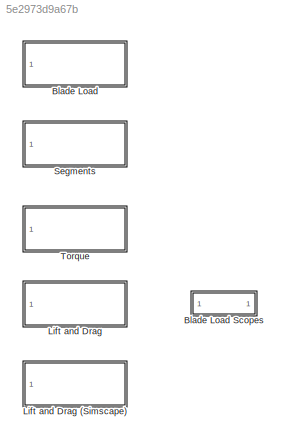
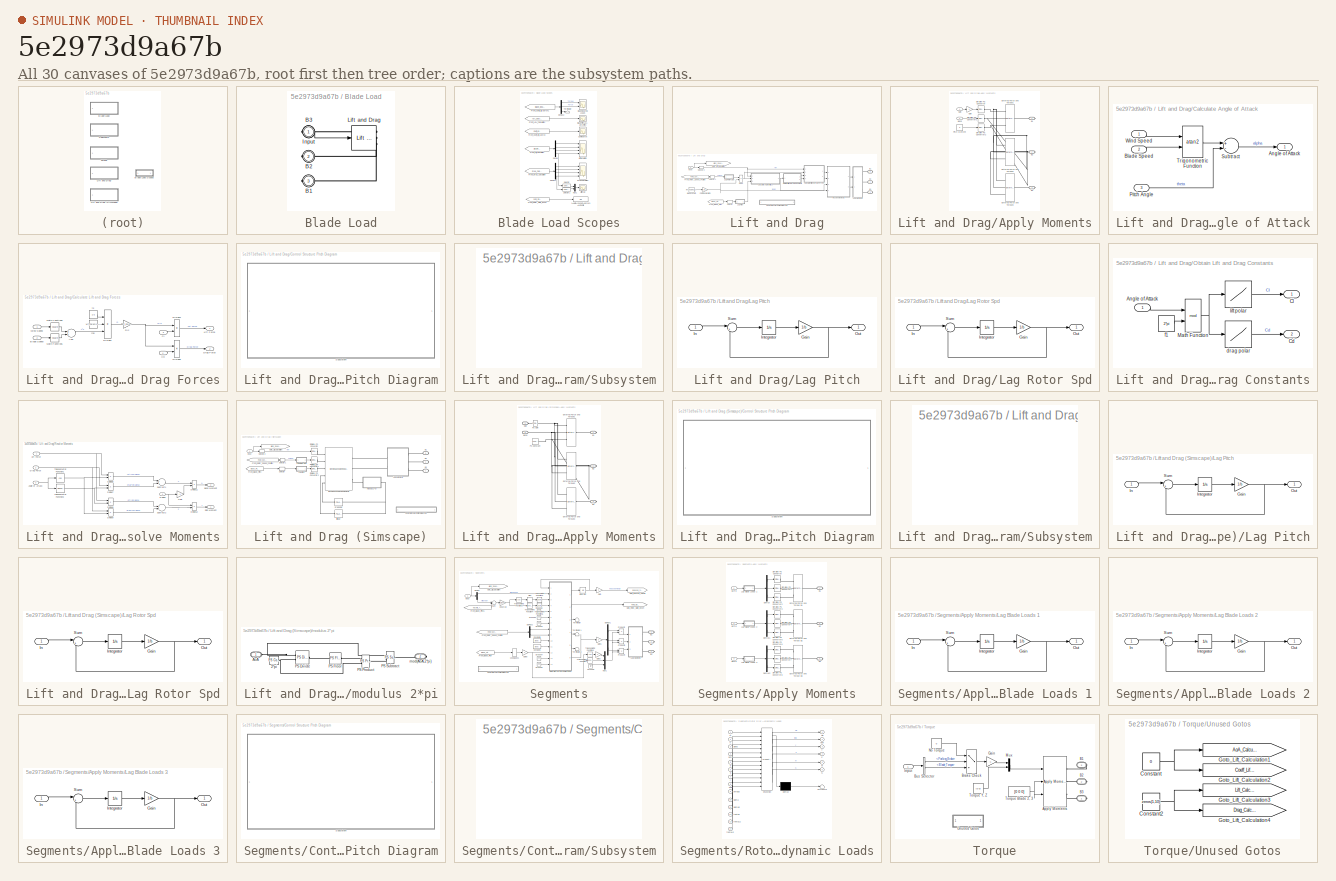
[diagram: thumbnail index - all 30 canvases of the model, root first then tree order]
MODEL slx_5e2973d9a67b
KIND library
BLOCK [SubSystem] Blade Load
  BlockChoice = Lift and Drag
  FunctionWithSeparateData = off
  MaskHideContents = off
  MemberBlocks = Lift and Drag,Lift and Drag (Simscape),Segments,Torque
  MinAlgLoopOccurrences = off
  Opaque = off
  Ports = [1, 0, 0, 0, 0, 0, 3]
  PropExecContextOutsideSubsystem = off
  RTWSystemCode = Auto
  RequestExecContextInheritance = off
  TemplateBlock = self
BLOCK [SubSystem] Blade Load Scopes
  FunctionWithSeparateData = off
  MaskHideContents = off
  MinAlgLoopOccurrences = off
  Opaque = off
  Ports = []
  PropExecContextOutsideSubsystem = off
  RTWSystemCode = Auto
  RequestExecContextInheritance = off
BLOCK [Display] Blade Load Scopes/1 = Heli 2 = Young's Approx 3 = Windmill
  Decimation = 1
  Lockdown = off
  Ports = [1]
BLOCK [Scope] Blade Load Scopes/Blade Bearing Loads
  DataFormat = StructureWithTime
  Floating = off
  LimitDataPoints = off
  NumInputPorts = 2
  Ports = [2]
  SampleTime = 0
  SaveName = ScopeData10
  ShowLegends = off
  TimeRange = 80
  YMax = 4000000~500000
  YMin = -2000000~-500000
  ZoomMode = yonly
BLOCK [Scope] Blade Load Scopes/Blade Pitch, AoA Zero Pitch
  DataFormat = StructureWithTime
  Floating = off
  LimitDataPoints = off
  NumInputPorts = 1
  Ports = [1]
  SampleTime = 0
  SaveName = ScopeData3
  ShowLegends = off
  TimeRange = 400
  YMax = 100
  YMin = 0
  ZoomMode = yonly
BLOCK [Scope] Blade Load Scopes/Coeff Approx
  DataFormat = StructureWithTime
  Floating = off
  LimitDataPoints = off
  NumInputPorts = 1
  Ports = [1]
  SampleTime = 0
  SaveName = ScopeData4
  ShowLegends = off
  TimeRange = 400
  YMax = 0.01794057021302797
  YMin = -0.1139986551164904
  ZoomMode = yonly
BLOCK [Demux] Blade Load Scopes/Demux
  DisplayOption = bar
  Outputs = [1 3 3 3]
  Ports = [1, 4]
BLOCK [Demux] Blade Load Scopes/Demux1
  DisplayOption = bar
  Outputs = [1 3 3 3]
  Ports = [1, 4]
BLOCK [Demux] Blade Load Scopes/Demux2
  DisplayOption = bar
  Outputs = [3 3 12]
  Ports = [1, 3]
BLOCK [Scope] Blade Load Scopes/Drag Calculation
  DataFormat = StructureWithTime
  Floating = off
  LimitDataPoints = off
  NumInputPorts = 4
  Ports = [4]
  SampleTime = 0
  SaveName = ScopeData5
  ShowLegends = off
  TimeRange = 400
  YMax = 4000~100~6000~6000
  YMin = -2000~-50~0~0
  ZoomMode = yonly
BLOCK [From] Blade Load Scopes/From_AoA_Calculation
  CloseFcn = tagdialog Close
  GotoTag = AoA_Calculation
BLOCK [From] Blade Load Scopes/From_Coeff_Lift_Approx
  CloseFcn = tagdialog Close
  GotoTag = Coeff_Lift_Approx
BLOCK [From] Blade Load Scopes/From_Coeff_Lift_Approx1
  CloseFcn = tagdialog Close
  GotoTag = Blade_Bearing_Loads
  TagVisibility = global
BLOCK [From] Blade Load Scopes/From_Drag_Calculation
  CloseFcn = tagdialog Close
  GotoTag = Drag_Calculation
BLOCK [From] Blade Load Scopes/From_Lift_Calculation
  CloseFcn = tagdialog Close
  GotoTag = Lift_Calculation
BLOCK [From] Blade Load Scopes/From_Rotor_State_Enum
  CloseFcn = tagdialog Close
  GotoTag = Rotor_State_Enum
BLOCK [Scope] Blade Load Scopes/Lift Calculation
  DataFormat = StructureWithTime
  Floating = off
  LimitDataPoints = off
  NumInputPorts = 4
  Ports = [4]
  SampleTime = 0
  SaveName = ScopeData2
  ShowLegends = off
  TimeRange = 400
  YMax = 2000~100~1.5~100000
  YMin = 0~-50~-0.5~-50000
  ZoomMode = yonly
BLOCK [Scope] Blade Load Scopes/Lift, Drag
  DataFormat = StructureWithTime
  Floating = off
  LimitDataPoints = off
  NumInputPorts = 1
  Ports = [1]
  SampleTime = 0
  SaveName = ScopeData1
  ShowLegends = off
  TimeRange = 160
  YMax = 408.3026221352307
  YMin = -250.4351759669439
  ZoomMode = yonly
BLOCK [Mux] Blade Load Scopes/Mux1
  DisplayOption = bar
  Inputs = 2
  Ports = [2, 1]
BLOCK [Selector] Blade Load Scopes/Selector
  IndexOptions = Index vector (dialog)
  Indices = [1]
  InputPortWidth = 3
  OutputSizes = 1
  Ports = [1, 1]
BLOCK [Selector] Blade Load Scopes/Selector1
  IndexOptions = Index vector (dialog)
  Indices = [1 3]
  InputPortWidth = 3
  OutputSizes = 1
  Ports = [1, 1]
BLOCK [Terminator] Blade Load Scopes/Terminator
BLOCK [PMIOPort] Blade Load/B1
  Port = 3
  Side = Right
BLOCK [PMIOPort] Blade Load/B2
  Port = 2
  Side = Right
BLOCK [PMIOPort] Blade Load/B3
  Port = 1
  Side = Right
BLOCK [Inport] Blade Load/Input
  IconDisplay = Port number
BLOCK [Reference] Blade Load/Lift and Drag  REF=Wind_Lib/Lift and Drag
  FunctionWithSeparateData = off
  GeneratePreprocessorConditionals = off
  Ports = [1, 0, 0, 0, 0, 0, 3]
  ShowPortLabels = FromPortIcon
  SourceBlock = Wind_Lib/Lift and Drag
  SystemSampleTime = -1
BLOCK [SubSystem] Lift and Drag
  FunctionWithSeparateData = off
  MaskHideContents = off
  MinAlgLoopOccurrences = off
  Opaque = off
  Ports = [1, 0, 0, 0, 0, 0, 3]
  PropExecContextOutsideSubsystem = off
  RTWSystemCode = Auto
  RequestExecContextInheritance = off
BLOCK [SubSystem] Lift and Drag (Simscape)
  FunctionWithSeparateData = off
  MaskHideContents = off
  MinAlgLoopOccurrences = off
  Opaque = off
  Ports = [1, 0, 0, 0, 0, 0, 3]
  PropExecContextOutsideSubsystem = off
  RTWSystemCode = Auto
  RequestExecContextInheritance = off
BLOCK [SubSystem] Lift and Drag (Simscape)/Apply Moments
  FunctionWithSeparateData = off
  MaskHideContents = off
  MinAlgLoopOccurrences = off
  Opaque = off
  Ports = [0, 0, 0, 0, 0, 2, 3]
  PropExecContextOutsideSubsystem = off
  RTWSystemCode = Auto
  RequestExecContextInheritance = off
BLOCK [PMIOPort] Lift and Drag (Simscape)/Apply Moments/B1
  Port = 1
  Side = Right
BLOCK [PMIOPort] Lift and Drag (Simscape)/Apply Moments/B2
  Port = 2
  Side = Right
BLOCK [PMIOPort] Lift and Drag (Simscape)/Apply Moments/B3
  Port = 3
  Side = Right
BLOCK [PMIOPort] Lift and Drag (Simscape)/Apply Moments/Bend
  Port = 5
  Side = Left
BLOCK [Reference] Lift and Drag (Simscape)/Apply Moments/External Force and Torque1  REF=sm_lib/Forces and
 Torques/External Force 
and Torque
  BlockFunction = simmechanics.library.forces_torques.external_force_torque
  ClassName = ExternalForceTorque
  EnableForce = off
  EnableForceX = off
  EnableForceY = off
  EnableForceZ = off
  EnableTorque = off
  EnableTorqueX = on
  EnableTorqueY = on
  EnableTorqueZ = on
  ForceResolutionFrame = AttachedFrame
  Ports = [0, 0, 0, 0, 0, 3, 1]
  SourceBlock = sm_lib/Forces and\n Torques/External Force \nand Torque
  SourceType = External Force and Torque
  TorqueResolutionFrame = AttachedFrame
BLOCK [Reference] Lift and Drag (Simscape)/Apply Moments/External Force and Torque2  REF=sm_lib/Forces and
 Torques/External Force 
and Torque
  BlockFunction = simmechanics.library.forces_torques.external_force_torque
  ClassName = ExternalForceTorque
  EnableForce = off
  EnableForceX = off
  EnableForceY = off
  EnableForceZ = off
  EnableTorque = off
  EnableTorqueX = on
  EnableTorqueY = on
  EnableTorqueZ = on
  ForceResolutionFrame = AttachedFrame
  Ports = [0, 0, 0, 0, 0, 3, 1]
  SourceBlock = sm_lib/Forces and\n Torques/External Force \nand Torque
  SourceType = External Force and Torque
  TorqueResolutionFrame = AttachedFrame
BLOCK [Reference] Lift and Drag (Simscape)/Apply Moments/External Force and Torque3  REF=sm_lib/Forces and
 Torques/External Force 
and Torque
  BlockFunction = simmechanics.library.forces_torques.external_force_torque
  ClassName = ExternalForceTorque
  EnableForce = off
  EnableForceX = off
  EnableForceY = off
  EnableForceZ = off
  EnableTorque = off
  EnableTorqueX = on
  EnableTorqueY = on
  EnableTorqueZ = on
  ForceResolutionFrame = AttachedFrame
  Ports = [0, 0, 0, 0, 0, 3, 1]
  SourceBlock = sm_lib/Forces and\n Torques/External Force \nand Torque
  SourceType = External Force and Torque
  TorqueResolutionFrame = AttachedFrame
BLOCK [Reference] Lift and Drag (Simscape)/Apply Moments/PS Constant  REF=fl_lib/Physical Signals/Sources/PS Constant
  ClassName = constant
  ComponentPath = foundation.physical_signal.sources.constant
  ComponentVariantNames = constant
  ComponentVariants = foundation.physical_signal.sources.constant
  LocalVarLogging = []
  Ports = [0, 0, 0, 0, 0, 0, 1]
  SchemaVersion = 1
  SourceBlock = fl_lib/Physical Signals/Sources/PS Constant
  SourceFile = foundation.physical_signal.sources.constant
  SourceType = PS Constant
  constant = 0
  constant_unit = 1
BLOCK [Reference] Lift and Drag (Simscape)/Apply Moments/PS Gain  REF=fl_lib/Physical Signals/Functions/PS Gain
  ClassName = gain
  ComponentPath = foundation.physical_signal.functions.gain
  ComponentVariantNames = gain
  ComponentVariants = foundation.physical_signal.functions.gain
  LocalVarLogging = []
  Ports = [0, 0, 0, 0, 0, 1, 1]
  SchemaVersion = 1
  SourceBlock = fl_lib/Physical Signals/Functions/PS Gain
  SourceFile = foundation.physical_signal.functions.gain
  SourceType = PS Gain
  gain = -1
  gain_unit = 1
BLOCK [PMIOPort] Lift and Drag (Simscape)/Apply Moments/Spin
  Port = 4
  Side = Left
BLOCK [PMIOPort] Lift and Drag (Simscape)/B1
  Port = 3
  Side = Right
  Tag = PMCPort
BLOCK [PMIOPort] Lift and Drag (Simscape)/B2
  Port = 2
  Side = Right
  Tag = PMCPort
BLOCK [PMIOPort] Lift and Drag (Simscape)/B3
  Port = 1
  Side = Right
  Tag = PMCPort
BLOCK [Reference] Lift and Drag (Simscape)/Bending and Spinning Moments  REF=AerodynamicLoads_lib/Bending and Spinning
Moments
  ClassName = BendingSpinningMoments
  ComponentPath = AerodynamicLoads.BendingSpinningMoments
  ComponentVariantNames = BendingSpinningMoments
  ComponentVariants = AerodynamicLoads.BendingSpinningMoments
  Fd_Log = off
  Fl_Log = off
  LocalVarDescs = |Lift force|Drag force|Blade speed|Radius where force is applied
  LocalVarLogging = [0 0 0 0]
  LocalVarNames = |Fl|Fd|v_blade|radius
  Ports = [0, 0, 0, 0, 0, 5, 3]
  SchemaVersion = 1
  SourceBlock = AerodynamicLoads_lib/Bending and Spinning\nMoments
  SourceFile = AerodynamicLoads.BendingSpinningMoments
  SourceType = Bending and Spinning\nMoments
  blade_length = WT_Params.Blade.length
  blade_length_unit = m
  blade_width = WT_Params.Blade.width
  blade_width_unit = m
  radius_Log = off
  ratio = 0.66667
  ratio_unit = 1
  rho = WT_Params.Air.Density
  rho_unit = kg/m^3
  v_blade_Log = off
BLOCK [SubSystem] Lift and Drag (Simscape)/Control Structure Pitch Diagram
  FunctionWithSeparateData = off
  MaskHideContents = off
  MinAlgLoopOccurrences = off
  Opaque = off
  Ports = []
  PropExecContextOutsideSubsystem = off
  RTWSystemCode = Auto
  RequestExecContextInheritance = off
BLOCK [SubSystem] Lift and Drag (Simscape)/Control Structure Pitch Diagram/Subsystem
  FunctionWithSeparateData = off
  MaskHideContents = off
  MinAlgLoopOccurrences = off
  Opaque = off
  Ports = []
  PropExecContextOutsideSubsystem = off
  RTWSystemCode = Auto
  RequestExecContextInheritance = off
BLOCK [From] Lift and Drag (Simscape)/From_Blade_Pitch
  CloseFcn = tagdialog Close
  GotoTag = Blade_Pitch
  TagVisibility = global
BLOCK [From] Lift and Drag (Simscape)/From_Rotor_Speed_Position
  CloseFcn = tagdialog Close
  GotoTag = Rotor_Speed_Position
  TagVisibility = global
BLOCK [Goto] Lift and Drag (Simscape)/Goto_Lift_Calculation
  GotoTag = Wind_Speed_Direction
  TagVisibility = global
BLOCK [Inport] Lift and Drag (Simscape)/Input
  IconDisplay = Port number
BLOCK [SubSystem] Lift and Drag (Simscape)/Lag Pitch
  FunctionWithSeparateData = off
  MaskHideContents = off
  MinAlgLoopOccurrences = off
  Opaque = off
  Ports = [1, 1]
  PropExecContextOutsideSubsystem = off
  RTWSystemCode = Auto
  RequestExecContextInheritance = off
BLOCK [Gain] Lift and Drag (Simscape)/Lag Pitch/Gain
  Gain = 1/b
  OutDataTypeStr = Inherit: Inherit via internal rule
  ParamDataTypeStr = Inherit: Inherit via internal rule
  SaturateOnIntegerOverflow = off
BLOCK [Inport] Lift and Drag (Simscape)/Lag Pitch/In
  IconDisplay = Port number
BLOCK [Integrator] Lift and Drag (Simscape)/Lag Pitch/Integrator
  InitialCondition = x_initial
  Ports = [1, 1]
BLOCK [Outport] Lift and Drag (Simscape)/Lag Pitch/Out
  IconDisplay = Port number
BLOCK [Sum] Lift and Drag (Simscape)/Lag Pitch/Sum
  IconShape = round
  Inputs = |+-
  Ports = [2, 1]
BLOCK [SubSystem] Lift and Drag (Simscape)/Lag Rotor Spd
  FunctionWithSeparateData = off
  MaskHideContents = off
  MinAlgLoopOccurrences = off
  Opaque = off
  Ports = [1, 1]
  PropExecContextOutsideSubsystem = off
  RTWSystemCode = Auto
  RequestExecContextInheritance = off
BLOCK [Gain] Lift and Drag (Simscape)/Lag Rotor Spd/Gain
  Gain = 1/b
  OutDataTypeStr = Inherit: Inherit via internal rule
  ParamDataTypeStr = Inherit: Inherit via internal rule
  SaturateOnIntegerOverflow = off
BLOCK [Inport] Lift and Drag (Simscape)/Lag Rotor Spd/In
  IconDisplay = Port number
BLOCK [Integrator] Lift and Drag (Simscape)/Lag Rotor Spd/Integrator
  InitialCondition = x_initial
  Ports = [1, 1]
BLOCK [Outport] Lift and Drag (Simscape)/Lag Rotor Spd/Out
  IconDisplay = Port number
BLOCK [Sum] Lift and Drag (Simscape)/Lag Rotor Spd/Sum
  IconShape = round
  Inputs = |+-
  Ports = [2, 1]
BLOCK [Selector] Lift and Drag (Simscape)/Selector
  IndexOptions = Index vector (dialog)
  Indices = [1]
  InputPortWidth = 3
  OutputSizes = 1
  Ports = [1, 1]
BLOCK [Selector] Lift and Drag (Simscape)/Selector1
  IndexOptions = Index vector (dialog)
  Indices = [2]
  InputPortWidth = 2
  OutputSizes = 1
  Ports = [1, 1]
BLOCK [Selector] Lift and Drag (Simscape)/Selector2
  IndexOptions = Index vector (dialog)
  Indices = [1]
  InputPortWidth = 2
  OutputSizes = 1
  Ports = [1, 1]
BLOCK [Reference] Lift and Drag (Simscape)/Simulink-PS Converter  REF=nesl_utility/Simulink-PS
Converter
  AffineConversion = off
  Frequencies = []
  InputFilterTimeConstant = .001
  InputFiltering = off
  LeftPortType = input
  NoiseDistribution = none
  NoiseParameters = []
  PhysicalDomain = network_engine_domain
  Ports = [1, 0, 0, 0, 0, 0, 1]
  PseudoPeriodic = off
  RightPortType = output
  SimscapeFilterOrder = 1
  SourceBlock = nesl_utility/Simulink-PS\nConverter
  SourceType = Simulink-PS\nConverter
  SubClassName = ps_input
  UdotUserProvided = 0
  Unit = m/s
BLOCK [Reference] Lift and Drag (Simscape)/Simulink-PS Converter1  REF=nesl_utility/Simulink-PS
Converter
  AffineConversion = off
  Frequencies = []
  InputFilterTimeConstant = .001
  InputFiltering = off
  LeftPortType = input
  NoiseDistribution = none
  NoiseParameters = []
  PhysicalDomain = network_engine_domain
  Ports = [1, 0, 0, 0, 0, 0, 1]
  PseudoPeriodic = off
  RightPortType = output
  SimscapeFilterOrder = 1
  SourceBlock = nesl_utility/Simulink-PS\nConverter
  SourceType = Simulink-PS\nConverter
  SubClassName = ps_input
  UdotUserProvided = 0
  Unit = rad/s
BLOCK [Reference] Lift and Drag (Simscape)/Simulink-PS Converter2  REF=nesl_utility/Simulink-PS
Converter
  AffineConversion = off
  Frequencies = []
  InputFilterTimeConstant = .001
  InputFiltering = off
  LeftPortType = input
  NoiseDistribution = none
  NoiseParameters = []
  PhysicalDomain = network_engine_domain
  Ports = [1, 0, 0, 0, 0, 0, 1]
  PseudoPeriodic = off
  RightPortType = output
  SimscapeFilterOrder = 1
  SourceBlock = nesl_utility/Simulink-PS\nConverter
  SourceType = Simulink-PS\nConverter
  SubClassName = ps_input
  UdotUserProvided = 0
  Unit = rad
BLOCK [Reference] Lift and Drag (Simscape)/drag polar  REF=fl_lib/Physical Signals/Lookup Tables/PS Lookup Table (1D)
  ClassName = ps_1d_tlu
  ComponentPath = foundation.physical_signal.lookup_tables.one_dimensional
  ComponentVariantNames = one_dimensional
  ComponentVariants = foundation.physical_signal.lookup_tables.one_dimensional
  LocalVarLogging = []
  Ports = [0, 0, 0, 0, 0, 1, 1]
  SchemaVersion = 1
  SourceBlock = fl_lib/Physical Signals/Lookup Tables/PS Lookup Table (1D)
  SourceFile = foundation.physical_signal.lookup_tables.one_dimensional
  SourceType = PS Lookup Table (1D)
  extrap_method = 1
  extrap_method_unit = 1
  interp_method = 1
  interp_method_unit = 1
  x_t = WT_Params.NACA0015.AoA
  x_t_unit = 1
  y_t = WT_Params.NACA0015.Cd
  y_t_unit = 1
BLOCK [Reference] Lift and Drag (Simscape)/lift polar  REF=fl_lib/Physical Signals/Lookup Tables/PS Lookup Table (1D)
  ClassName = ps_1d_tlu
  ComponentPath = foundation.physical_signal.lookup_tables.one_dimensional
  ComponentVariantNames = one_dimensional
  ComponentVariants = foundation.physical_signal.lookup_tables.one_dimensional
  LocalVarLogging = []
  Ports = [0, 0, 0, 0, 0, 1, 1]
  SchemaVersion = 1
  SourceBlock = fl_lib/Physical Signals/Lookup Tables/PS Lookup Table (1D)
  SourceFile = foundation.physical_signal.lookup_tables.one_dimensional
  SourceType = PS Lookup Table (1D)
  extrap_method = 1
  extrap_method_unit = 1
  interp_method = 1
  interp_method_unit = 1
  x_t = WT_Params.NACA0015.AoA
  x_t_unit = 1
  y_t = WT_Params.NACA0015.Cl
  y_t_unit = 1
BLOCK [SubSystem] Lift and Drag (Simscape)/modulus 2*pi
  FunctionWithSeparateData = off
  MaskHideContents = off
  MinAlgLoopOccurrences = off
  Opaque = off
  Ports = [0, 0, 0, 0, 0, 1, 1]
  PropExecContextOutsideSubsystem = off
  RTWSystemCode = Auto
  RequestExecContextInheritance = off
BLOCK [Reference] Lift and Drag (Simscape)/modulus 2*pi/2*pi  REF=fl_lib/Physical Signals/Sources/PS Constant
  ClassName = constant
  ComponentPath = foundation.physical_signal.sources.constant
  ComponentVariantNames = constant
  ComponentVariants = foundation.physical_signal.sources.constant
  LocalVarLogging = []
  Ports = [0, 0, 0, 0, 0, 0, 1]
  SchemaVersion = 1
  SourceBlock = fl_lib/Physical Signals/Sources/PS Constant
  SourceFile = foundation.physical_signal.sources.constant
  SourceType = PS Constant
  constant = 2*pi
  constant_unit = 1
BLOCK [PMIOPort] Lift and Drag (Simscape)/modulus 2*pi/AoA
  Port = 1
  Side = Left
BLOCK [Reference] Lift and Drag (Simscape)/modulus 2*pi/PS Divide  REF=fl_lib/Physical Signals/Functions/PS Divide
  ClassName = divide
  ComponentPath = foundation.physical_signal.functions.divide
  ComponentVariantNames = divide
  ComponentVariants = foundation.physical_signal.functions.divide
  LocalVarLogging = []
  Ports = [0, 0, 0, 0, 0, 2, 1]
  SchemaVersion = 1
  SourceBlock = fl_lib/Physical Signals/Functions/PS Divide
  SourceFile = foundation.physical_signal.functions.divide
  SourceType = PS Divide
BLOCK [Reference] Lift and Drag (Simscape)/modulus 2*pi/PS Floor  REF=fl_lib/Physical Signals/Nonlinear Operators/PS Floor
  ClassName = ps_floor
  ComponentPath = foundation.physical_signal.nonlinear.floor
  ComponentVariantNames = floor
  ComponentVariants = foundation.physical_signal.nonlinear.floor
  LocalVarLogging = []
  Ports = [0, 0, 0, 0, 0, 1, 1]
  SchemaVersion = 1
  SourceBlock = fl_lib/Physical Signals/Nonlinear Operators/PS Floor
  SourceFile = foundation.physical_signal.nonlinear.floor
  SourceType = PS Floor
BLOCK [Reference] Lift and Drag (Simscape)/modulus 2*pi/PS Product  REF=fl_lib/Physical Signals/Functions/PS Product
  ClassName = product
  ComponentPath = foundation.physical_signal.functions.product
  ComponentVariantNames = product
  ComponentVariants = foundation.physical_signal.functions.product
  LocalVarLogging = []
  Ports = [0, 0, 0, 0, 0, 2, 1]
  SchemaVersion = 1
  SourceBlock = fl_lib/Physical Signals/Functions/PS Product
  SourceFile = foundation.physical_signal.functions.product
  SourceType = PS Product
BLOCK [Reference] Lift and Drag (Simscape)/modulus 2*pi/PS Subtract  REF=fl_lib/Physical Signals/Functions/PS Subtract
  ClassName = subtract
  ComponentPath = foundation.physical_signal.functions.subtract
  ComponentVariantNames = subtract
  ComponentVariants = foundation.physical_signal.functions.subtract
  LocalVarLogging = []
  Ports = [0, 0, 0, 0, 0, 2, 1]
  SchemaVersion = 1
  SourceBlock = fl_lib/Physical Signals/Functions/PS Subtract
  SourceFile = foundation.physical_signal.functions.subtract
  SourceType = PS Subtract
BLOCK [PMIOPort] Lift and Drag (Simscape)/modulus 2*pi/mod(AoA,2*pi)
  Port = 2
  Side = Right
BLOCK [SubSystem] Lift and Drag/Apply Moments
  FunctionWithSeparateData = off
  MaskHideContents = off
  MinAlgLoopOccurrences = off
  Opaque = off
  Ports = [2, 0, 0, 0, 0, 0, 3]
  PropExecContextOutsideSubsystem = off
  RTWSystemCode = Auto
  RequestExecContextInheritance = off
BLOCK [PMIOPort] Lift and Drag/Apply Moments/B1
  Port = 1
  Side = Right
BLOCK [PMIOPort] Lift and Drag/Apply Moments/B2
  Port = 2
  Side = Right
BLOCK [PMIOPort] Lift and Drag/Apply Moments/B3
  Port = 3
  Side = Right
BLOCK [Inport] Lift and Drag/Apply Moments/Bend
  IconDisplay = Port number
  Port = 2
BLOCK [Reference] Lift and Drag/Apply Moments/External Force and Torque1  REF=sm_lib/Forces and
 Torques/External Force 
and Torque
  BlockFunction = simmechanics.library.forces_torques.external_force_torque
  ClassName = ExternalForceTorque
  EnableForce = off
  EnableForceX = off
  EnableForceY = off
  EnableForceZ = off
  EnableTorque = off
  EnableTorqueX = on
  EnableTorqueY = on
  EnableTorqueZ = on
  ForceResolutionFrame = AttachedFrame
  Ports = [0, 0, 0, 0, 0, 3, 1]
  SourceBlock = sm_lib/Forces and\n Torques/External Force \nand Torque
  SourceType = External Force and Torque
  TorqueResolutionFrame = AttachedFrame
BLOCK [Reference] Lift and Drag/Apply Moments/External Force and Torque2  REF=sm_lib/Forces and
 Torques/External Force 
and Torque
  BlockFunction = simmechanics.library.forces_torques.external_force_torque
  ClassName = ExternalForceTorque
  EnableForce = off
  EnableForceX = off
  EnableForceY = off
  EnableForceZ = off
  EnableTorque = off
  EnableTorqueX = on
  EnableTorqueY = on
  EnableTorqueZ = on
  ForceResolutionFrame = AttachedFrame
  Ports = [0, 0, 0, 0, 0, 3, 1]
  SourceBlock = sm_lib/Forces and\n Torques/External Force \nand Torque
  SourceType = External Force and Torque
  TorqueResolutionFrame = AttachedFrame
BLOCK [Reference] Lift and Drag/Apply Moments/External Force and Torque3  REF=sm_lib/Forces and
 Torques/External Force 
and Torque
  BlockFunction = simmechanics.library.forces_torques.external_force_torque
  ClassName = ExternalForceTorque
  EnableForce = off
  EnableForceX = off
  EnableForceY = off
  EnableForceZ = off
  EnableTorque = off
  EnableTorqueX = on
  EnableTorqueY = on
  EnableTorqueZ = on
  ForceResolutionFrame = AttachedFrame
  Ports = [0, 0, 0, 0, 0, 3, 1]
  SourceBlock = sm_lib/Forces and\n Torques/External Force \nand Torque
  SourceType = External Force and Torque
  TorqueResolutionFrame = AttachedFrame
BLOCK [Gain] Lift and Drag/Apply Moments/Gain
  Gain = -1
  OutDataTypeStr = Inherit: Inherit via internal rule
  ParamDataTypeStr = Inherit: Inherit via internal rule
  SaturateOnIntegerOverflow = off
BLOCK [Constant] Lift and Drag/Apply Moments/Pitch Moment
  Value = 0
BLOCK [Reference] Lift and Drag/Apply Moments/Simulink-PS Converter  REF=nesl_utility/Simulink-PS
Converter
  AffineConversion = off
  Frequencies = []
  InputFilterTimeConstant = .001
  InputFiltering = off
  LeftPortType = input
  NoiseDistribution = none
  NoiseParameters = []
  PhysicalDomain = network_engine_domain
  Ports = [1, 0, 0, 0, 0, 0, 1]
  PseudoPeriodic = off
  RightPortType = output
  SimscapeFilterOrder = 1
  SourceBlock = nesl_utility/Simulink-PS\nConverter
  SourceType = Simulink-PS\nConverter
  SubClassName = ps_input
  UdotUserProvided = []
  Unit = 1
BLOCK [Reference] Lift and Drag/Apply Moments/Simulink-PS Converter1  REF=nesl_utility/Simulink-PS
Converter
  AffineConversion = off
  Frequencies = []
  InputFilterTimeConstant = .001
  InputFiltering = off
  LeftPortType = input
  NoiseDistribution = none
  NoiseParameters = []
  PhysicalDomain = network_engine_domain
  Ports = [1, 0, 0, 0, 0, 0, 1]
  PseudoPeriodic = off
  RightPortType = output
  SimscapeFilterOrder = 1
  SourceBlock = nesl_utility/Simulink-PS\nConverter
  SourceType = Simulink-PS\nConverter
  SubClassName = ps_input
  UdotUserProvided = []
  Unit = 1
BLOCK [Reference] Lift and Drag/Apply Moments/Simulink-PS Converter2  REF=nesl_utility/Simulink-PS
Converter
  AffineConversion = off
  Frequencies = []
  InputFilterTimeConstant = .001
  InputFiltering = off
  LeftPortType = input
  NoiseDistribution = none
  NoiseParameters = []
  PhysicalDomain = network_engine_domain
  Ports = [1, 0, 0, 0, 0, 0, 1]
  PseudoPeriodic = off
  RightPortType = output
  SimscapeFilterOrder = 1
  SourceBlock = nesl_utility/Simulink-PS\nConverter
  SourceType = Simulink-PS\nConverter
  SubClassName = ps_input
  UdotUserProvided = []
  Unit = 1
BLOCK [Inport] Lift and Drag/Apply Moments/Spin
  IconDisplay = Port number
BLOCK [PMIOPort] Lift and Drag/B1
  Port = 3
  Side = Right
  Tag = PMCPort
BLOCK [PMIOPort] Lift and Drag/B2
  Port = 2
  Side = Right
  Tag = PMCPort
BLOCK [PMIOPort] Lift and Drag/B3
  Port = 1
  Side = Right
  Tag = PMCPort
BLOCK [Constant] Lift and Drag/Blade Length
  Value = WT_Params.Blade.length
BLOCK [SubSystem] Lift and Drag/Calculate Angle of Attack
  FunctionWithSeparateData = off
  MaskHideContents = off
  MinAlgLoopOccurrences = off
  Opaque = off
  Ports = [3, 1]
  PropExecContextOutsideSubsystem = off
  RTWSystemCode = Auto
  RequestExecContextInheritance = off
BLOCK [Outport] Lift and Drag/Calculate Angle of Attack/Angle of Attack
  IconDisplay = Port number
BLOCK [Inport] Lift and Drag/Calculate Angle of Attack/Blade Speed
  IconDisplay = Port number
  Port = 2
BLOCK [Inport] Lift and Drag/Calculate Angle of Attack/Pitch Angle
  IconDisplay = Port number
  Port = 3
BLOCK [Sum] Lift and Drag/Calculate Angle of Attack/Subtract
  InputSameDT = off
  Inputs = +-
  OutDataTypeStr = Inherit: Inherit via internal rule
  Ports = [2, 1]
  SaturateOnIntegerOverflow = off
BLOCK [Trigonometry] Lift and Drag/Calculate Angle of Attack/Trigonometric Function
  Operator = atan2
  Ports = [2, 1]
BLOCK [Inport] Lift and Drag/Calculate Angle of Attack/Wind Speed
  IconDisplay = Port number
BLOCK [SubSystem] Lift and Drag/Calculate Lift and Drag Forces
  FunctionWithSeparateData = off
  MaskHideContents = off
  MinAlgLoopOccurrences = off
  Opaque = off
  Ports = [4, 2]
  PropExecContextOutsideSubsystem = off
  RTWSystemCode = Auto
  RequestExecContextInheritance = off
BLOCK [Sum] Lift and Drag/Calculate Lift and Drag Forces/Add
  InputSameDT = off
  OutDataTypeStr = Inherit: Inherit via internal rule
  Ports = [2, 1]
  SaturateOnIntegerOverflow = off
BLOCK [Inport] Lift and Drag/Calculate Lift and Drag Forces/Blade Speed
  IconDisplay = Port number
  Port = 2
BLOCK [Inport] Lift and Drag/Calculate Lift and Drag Forces/Cd
  IconDisplay = Port number
  Port = 4
BLOCK [Inport] Lift and Drag/Calculate Lift and Drag Forces/Cl
  IconDisplay = Port number
  Port = 3
BLOCK [Product] Lift and Drag/Calculate Lift and Drag Forces/Divide1
  InputSameDT = off
  Inputs = ***
  OutDataTypeStr = Inherit: Inherit via internal rule
  Ports = [3, 1]
  RndMeth = Floor
  SaturateOnIntegerOverflow = off
BLOCK [Product] Lift and Drag/Calculate Lift and Drag Forces/Divide4
  InputSameDT = off
  Inputs = **
  OutDataTypeStr = Inherit: Inherit via internal rule
  Ports = [2, 1]
  RndMeth = Floor
  SaturateOnIntegerOverflow = off
BLOCK [Product] Lift and Drag/Calculate Lift and Drag Forces/Divide5
  InputSameDT = off
  Inputs = **
  OutDataTypeStr = Inherit: Inherit via internal rule
  Ports = [2, 1]
  RndMeth = Floor
  SaturateOnIntegerOverflow = off
BLOCK [Outport] Lift and Drag/Calculate Lift and Drag Forces/Drag Force
  IconDisplay = Port number
  Port = 2
BLOCK [Outport] Lift and Drag/Calculate Lift and Drag Forces/Lift Force
  IconDisplay = Port number
BLOCK [Math] Lift and Drag/Calculate Lift and Drag Forces/Math Function1
  Operator = square
  Ports = [1, 1]
BLOCK [Math] Lift and Drag/Calculate Lift and Drag Forces/Math Function2
  Operator = square
  Ports = [1, 1]
BLOCK [Gain] Lift and Drag/Calculate Lift and Drag Forces/R*c
  Gain = WT_Params.Blade.length*WT_Params.Blade.width
  OutDataTypeStr = Inherit: Inherit via internal rule
  ParamDataTypeStr = Inherit: Inherit via internal rule
  SaturateOnIntegerOverflow = off
BLOCK [Inport] Lift and Drag/Calculate Lift and Drag Forces/Wind Speed
  IconDisplay = Port number
BLOCK [Constant] Lift and Drag/Calculate Lift and Drag Forces/f2
  Value = 1/2
BLOCK [Constant] Lift and Drag/Calculate Lift and Drag Forces/rho
  Value = WT_Params.Air.Density
BLOCK [SubSystem] Lift and Drag/Control Structure Pitch Diagram
  FunctionWithSeparateData = off
  MaskHideContents = off
  MinAlgLoopOccurrences = off
  Opaque = off
  Ports = []
  PropExecContextOutsideSubsystem = off
  RTWSystemCode = Auto
  RequestExecContextInheritance = off
BLOCK [SubSystem] Lift and Drag/Control Structure Pitch Diagram/Subsystem
  FunctionWithSeparateData = off
  MaskHideContents = off
  MinAlgLoopOccurrences = off
  Opaque = off
  Ports = []
  PropExecContextOutsideSubsystem = off
  RTWSystemCode = Auto
  RequestExecContextInheritance = off
BLOCK [Product] Lift and Drag/Divide
  InputSameDT = off
  Inputs = **
  OutDataTypeStr = Inherit: Inherit via internal rule
  Ports = [2, 1]
  RndMeth = Floor
  SaturateOnIntegerOverflow = off
BLOCK [From] Lift and Drag/From_Blade_Pitch
  CloseFcn = tagdialog Close
  GotoTag = Blade_Pitch
  TagVisibility = global
BLOCK [From] Lift and Drag/From_Rotor_Speed_Position
  CloseFcn = tagdialog Close
  GotoTag = Rotor_Speed_Position
  TagVisibility = global
BLOCK [Goto] Lift and Drag/Goto_Lift_Calculation
  GotoTag = Wind_Speed_Direction
  TagVisibility = global
BLOCK [Inport] Lift and Drag/Input
  IconDisplay = Port number
BLOCK [SubSystem] Lift and Drag/Lag Pitch
  FunctionWithSeparateData = off
  MaskHideContents = off
  MinAlgLoopOccurrences = off
  Opaque = off
  Ports = [1, 1]
  PropExecContextOutsideSubsystem = off
  RTWSystemCode = Auto
  RequestExecContextInheritance = off
BLOCK [Gain] Lift and Drag/Lag Pitch/Gain
  Gain = 1/b
  OutDataTypeStr = Inherit: Inherit via internal rule
  ParamDataTypeStr = Inherit: Inherit via internal rule
  SaturateOnIntegerOverflow = off
BLOCK [Inport] Lift and Drag/Lag Pitch/In
  IconDisplay = Port number
BLOCK [Integrator] Lift and Drag/Lag Pitch/Integrator
  InitialCondition = x_initial
  Ports = [1, 1]
BLOCK [Outport] Lift and Drag/Lag Pitch/Out
  IconDisplay = Port number
BLOCK [Sum] Lift and Drag/Lag Pitch/Sum
  IconShape = round
  Inputs = |+-
  Ports = [2, 1]
BLOCK [SubSystem] Lift and Drag/Lag Rotor Spd
  FunctionWithSeparateData = off
  MaskHideContents = off
  MinAlgLoopOccurrences = off
  Opaque = off
  Ports = [1, 1]
  PropExecContextOutsideSubsystem = off
  RTWSystemCode = Auto
  RequestExecContextInheritance = off
BLOCK [Gain] Lift and Drag/Lag Rotor Spd/Gain
  Gain = 1/b
  OutDataTypeStr = Inherit: Inherit via internal rule
  ParamDataTypeStr = Inherit: Inherit via internal rule
  SaturateOnIntegerOverflow = off
BLOCK [Inport] Lift and Drag/Lag Rotor Spd/In
  IconDisplay = Port number
BLOCK [Integrator] Lift and Drag/Lag Rotor Spd/Integrator
  InitialCondition = x_initial
  Ports = [1, 1]
BLOCK [Outport] Lift and Drag/Lag Rotor Spd/Out
  IconDisplay = Port number
BLOCK [Sum] Lift and Drag/Lag Rotor Spd/Sum
  IconShape = round
  Inputs = |+-
  Ports = [2, 1]
BLOCK [SubSystem] Lift and Drag/Obtain Lift and Drag Constants
  FunctionWithSeparateData = off
  MaskHideContents = off
  MinAlgLoopOccurrences = off
  Opaque = off
  Ports = [1, 2]
  PropExecContextOutsideSubsystem = off
  RTWSystemCode = Auto
  RequestExecContextInheritance = off
BLOCK [Inport] Lift and Drag/Obtain Lift and Drag Constants/Angle of Attack
  IconDisplay = Port number
BLOCK [Outport] Lift and Drag/Obtain Lift and Drag Constants/Cd
  IconDisplay = Port number
  Port = 2
BLOCK [Outport] Lift and Drag/Obtain Lift and Drag Constants/Cl
  IconDisplay = Port number
BLOCK [Math] Lift and Drag/Obtain Lift and Drag Constants/Math Function
  Operator = mod
  Ports = [2, 1]
BLOCK [Lookup] Lift and Drag/Obtain Lift and Drag Constants/drag polar
  InputValues = WT_Params.NACA0015.AoA
  SaturateOnIntegerOverflow = off
  Table = WT_Params.NACA0015.Cd
BLOCK [Constant] Lift and Drag/Obtain Lift and Drag Constants/f1
  Value = 2*pi
BLOCK [Lookup] Lift and Drag/Obtain Lift and Drag Constants/lift polar
  InputValues = WT_Params.NACA0015.AoA
  SaturateOnIntegerOverflow = off
  Table = WT_Params.NACA0015.Cl
BLOCK [Gain] Lift and Drag/Point of Application
  Gain = 2/3
  OutDataTypeStr = Inherit: Inherit via internal rule
  ParamDataTypeStr = Inherit: Inherit via internal rule
  SaturateOnIntegerOverflow = off
BLOCK [SubSystem] Lift and Drag/Resolve Moments
  FunctionWithSeparateData = off
  MaskHideContents = off
  MinAlgLoopOccurrences = off
  Opaque = off
  Ports = [4, 2]
  PropExecContextOutsideSubsystem = off
  RTWSystemCode = Auto
  RequestExecContextInheritance = off
BLOCK [Inport] Lift and Drag/Resolve Moments/Angle of Attack
  IconDisplay = Port number
  Port = 3
BLOCK [Outport] Lift and Drag/Resolve Moments/Bend Moment
  IconDisplay = Port number
  Port = 2
BLOCK [Product] Lift and Drag/Resolve Moments/Divide11
  InputSameDT = off
  Inputs = **
  OutDataTypeStr = Inherit: Inherit via internal rule
  Ports = [2, 1]
  RndMeth = Floor
  SaturateOnIntegerOverflow = off
BLOCK [Product] Lift and Drag/Resolve Moments/Divide12
  InputSameDT = off
  Inputs = **
  OutDataTypeStr = Inherit: Inherit via internal rule
  Ports = [2, 1]
  RndMeth = Floor
  SaturateOnIntegerOverflow = off
BLOCK [Product] Lift and Drag/Resolve Moments/Divide6
  InputSameDT = off
  Inputs = **
  OutDataTypeStr = Inherit: Inherit via internal rule
  Ports = [2, 1]
  RndMeth = Floor
  SaturateOnIntegerOverflow = off
BLOCK [Product] Lift and Drag/Resolve Moments/Divide7
  InputSameDT = off
  Inputs = **
  OutDataTypeStr = Inherit: Inherit via internal rule
  Ports = [2, 1]
  RndMeth = Floor
  SaturateOnIntegerOverflow = off
BLOCK [Product] Lift and Drag/Resolve Moments/Divide8
  InputSameDT = off
  Inputs = **
  OutDataTypeStr = Inherit: Inherit via internal rule
  Ports = [2, 1]
  RndMeth = Floor
  SaturateOnIntegerOverflow = off
BLOCK [Product] Lift and Drag/Resolve Moments/Divide9
  InputSameDT = off
  Inputs = **
  OutDataTypeStr = Inherit: Inherit via internal rule
  Ports = [2, 1]
  RndMeth = Floor
  SaturateOnIntegerOverflow = off
BLOCK [Inport] Lift and Drag/Resolve Moments/Drag Force
  IconDisplay = Port number
  Port = 2
BLOCK [Gain] Lift and Drag/Resolve Moments/Gain
  Gain = -1
  OutDataTypeStr = Inherit: Inherit via internal rule
  ParamDataTypeStr = Inherit: Inherit via internal rule
  SaturateOnIntegerOverflow = off
BLOCK [Inport] Lift and Drag/Resolve Moments/Lift Force
  IconDisplay = Port number
BLOCK [Inport] Lift and Drag/Resolve Moments/Radius
  IconDisplay = Port number
  Port = 4
BLOCK [Outport] Lift and Drag/Resolve Moments/Spin Moment
  IconDisplay = Port number
BLOCK [Sum] Lift and Drag/Resolve Moments/Subtract1
  InputSameDT = off
  OutDataTypeStr = Inherit: Inherit via internal rule
  Ports = [2, 1]
  SaturateOnIntegerOverflow = off
BLOCK [Sum] Lift and Drag/Resolve Moments/Subtract2
  InputSameDT = off
  Inputs = +-
  OutDataTypeStr = Inherit: Inherit via internal rule
  Ports = [2, 1]
  SaturateOnIntegerOverflow = off
BLOCK [Trigonometry] Lift and Drag/Resolve Moments/Trigonometric Function1
  Operator = cos
  Ports = [1, 1]
BLOCK [Trigonometry] Lift and Drag/Resolve Moments/Trigonometric Function2
  Ports = [1, 1]
BLOCK [Selector] Lift and Drag/Selector
  IndexOptions = Index vector (dialog)
  Indices = [1]
  InputPortWidth = 3
  OutputSizes = 1
  Ports = [1, 1]
BLOCK [Selector] Lift and Drag/Selector1
  IndexOptions = Index vector (dialog)
  Indices = [2]
  InputPortWidth = 2
  OutputSizes = 1
  Ports = [1, 1]
BLOCK [Selector] Lift and Drag/Selector2
  IndexOptions = Index vector (dialog)
  Indices = [1]
  InputPortWidth = 2
  OutputSizes = 1
  Ports = [1, 1]
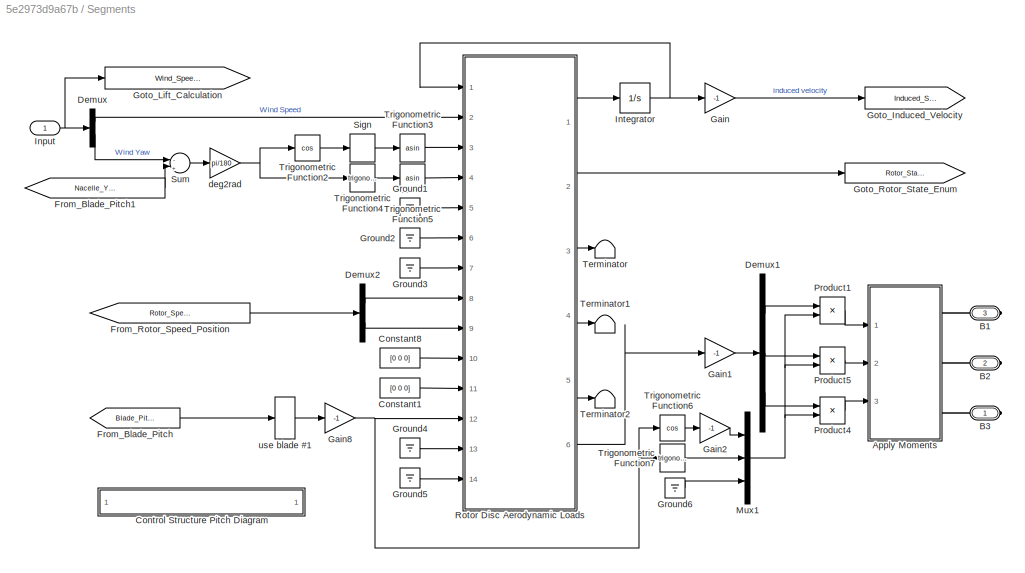
BLOCK [SubSystem] Segments
  FunctionWithSeparateData = off
  MaskHideContents = off
  MinAlgLoopOccurrences = off
  Opaque = off
  Ports = [1, 0, 0, 0, 0, 0, 3]
  PropExecContextOutsideSubsystem = off
  RTWSystemCode = Auto
  RequestExecContextInheritance = off
BLOCK [SubSystem] Segments/Apply Moments
  FunctionWithSeparateData = off
  MaskHideContents = off
  MinAlgLoopOccurrences = off
  Opaque = off
  Ports = [3, 0, 0, 0, 0, 0, 3]
  PropExecContextOutsideSubsystem = off
  RTWSystemCode = Auto
  RequestExecContextInheritance = off
BLOCK [PMIOPort] Segments/Apply Moments/B1
  Port = 1
  Side = Right
BLOCK [Inport] Segments/Apply Moments/B1Trq
  IconDisplay = Port number
BLOCK [PMIOPort] Segments/Apply Moments/B2
  Port = 2
  Side = Right
BLOCK [Inport] Segments/Apply Moments/B2Trq
  IconDisplay = Port number
  Port = 2
BLOCK [PMIOPort] Segments/Apply Moments/B3
  Port = 3
  Side = Right
BLOCK [Inport] Segments/Apply Moments/B3Trq
  IconDisplay = Port number
  Port = 3
BLOCK [Demux] Segments/Apply Moments/Demux
  DisplayOption = bar
  Outputs = 3
  Ports = [1, 3]
BLOCK [Demux] Segments/Apply Moments/Demux1
  DisplayOption = bar
  Outputs = 3
  Ports = [1, 3]
BLOCK [Demux] Segments/Apply Moments/Demux2
  DisplayOption = bar
  Outputs = 3
  Ports = [1, 3]
BLOCK [Reference] Segments/Apply Moments/External Force and Torque B1  REF=sm_lib/Forces and
 Torques/External Force 
and Torque
  BlockFunction = simmechanics.library.forces_torques.external_force_torque
  ClassName = ExternalForceTorque
  EnableForce = off
  EnableForceX = off
  EnableForceY = off
  EnableForceZ = off
  EnableTorque = off
  EnableTorqueX = on
  EnableTorqueY = on
  EnableTorqueZ = on
  ForceResolutionFrame = AttachedFrame
  Ports = [0, 0, 0, 0, 0, 3, 1]
  SourceBlock = sm_lib/Forces and\n Torques/External Force \nand Torque
  SourceType = External Force and Torque
  TorqueResolutionFrame = AttachedFrame
BLOCK [Reference] Segments/Apply Moments/External Force and Torque B2  REF=sm_lib/Forces and
 Torques/External Force 
and Torque
  BlockFunction = simmechanics.library.forces_torques.external_force_torque
  ClassName = ExternalForceTorque
  EnableForce = off
  EnableForceX = off
  EnableForceY = off
  EnableForceZ = off
  EnableTorque = off
  EnableTorqueX = on
  EnableTorqueY = on
  EnableTorqueZ = on
  ForceResolutionFrame = AttachedFrame
  Ports = [0, 0, 0, 0, 0, 3, 1]
  SourceBlock = sm_lib/Forces and\n Torques/External Force \nand Torque
  SourceType = External Force and Torque
  TorqueResolutionFrame = AttachedFrame
BLOCK [Reference] Segments/Apply Moments/External Force and Torque B3  REF=sm_lib/Forces and
 Torques/External Force 
and Torque
  BlockFunction = simmechanics.library.forces_torques.external_force_torque
  ClassName = ExternalForceTorque
  EnableForce = off
  EnableForceX = off
  EnableForceY = off
  EnableForceZ = off
  EnableTorque = off
  EnableTorqueX = on
  EnableTorqueY = on
  EnableTorqueZ = on
  ForceResolutionFrame = AttachedFrame
  Ports = [0, 0, 0, 0, 0, 3, 1]
  SourceBlock = sm_lib/Forces and\n Torques/External Force \nand Torque
  SourceType = External Force and Torque
  TorqueResolutionFrame = AttachedFrame
BLOCK [SubSystem] Segments/Apply Moments/Lag Blade Loads 1
  FunctionWithSeparateData = off
  MaskHideContents = off
  MinAlgLoopOccurrences = off
  Opaque = off
  Ports = [1, 1]
  PropExecContextOutsideSubsystem = off
  RTWSystemCode = Auto
  RequestExecContextInheritance = off
BLOCK [Gain] Segments/Apply Moments/Lag Blade Loads 1/Gain
  Gain = 1/b
  OutDataTypeStr = Inherit: Inherit via internal rule
  ParamDataTypeStr = Inherit: Inherit via internal rule
  SaturateOnIntegerOverflow = off
BLOCK [Inport] Segments/Apply Moments/Lag Blade Loads 1/In
  IconDisplay = Port number
BLOCK [Integrator] Segments/Apply Moments/Lag Blade Loads 1/Integrator
  InitialCondition = x_initial
  Ports = [1, 1]
BLOCK [Outport] Segments/Apply Moments/Lag Blade Loads 1/Out
  IconDisplay = Port number
BLOCK [Sum] Segments/Apply Moments/Lag Blade Loads 1/Sum
  IconShape = round
  Inputs = |+-
  Ports = [2, 1]
BLOCK [SubSystem] Segments/Apply Moments/Lag Blade Loads 2
  FunctionWithSeparateData = off
  MaskHideContents = off
  MinAlgLoopOccurrences = off
  Opaque = off
  Ports = [1, 1]
  PropExecContextOutsideSubsystem = off
  RTWSystemCode = Auto
  RequestExecContextInheritance = off
BLOCK [Gain] Segments/Apply Moments/Lag Blade Loads 2/Gain
  Gain = 1/b
  OutDataTypeStr = Inherit: Inherit via internal rule
  ParamDataTypeStr = Inherit: Inherit via internal rule
  SaturateOnIntegerOverflow = off
BLOCK [Inport] Segments/Apply Moments/Lag Blade Loads 2/In
  IconDisplay = Port number
BLOCK [Integrator] Segments/Apply Moments/Lag Blade Loads 2/Integrator
  InitialCondition = x_initial
  Ports = [1, 1]
BLOCK [Outport] Segments/Apply Moments/Lag Blade Loads 2/Out
  IconDisplay = Port number
BLOCK [Sum] Segments/Apply Moments/Lag Blade Loads 2/Sum
  IconShape = round
  Inputs = |+-
  Ports = [2, 1]
BLOCK [SubSystem] Segments/Apply Moments/Lag Blade Loads 3
  FunctionWithSeparateData = off
  MaskHideContents = off
  MinAlgLoopOccurrences = off
  Opaque = off
  Ports = [1, 1]
  PropExecContextOutsideSubsystem = off
  RTWSystemCode = Auto
  RequestExecContextInheritance = off
BLOCK [Gain] Segments/Apply Moments/Lag Blade Loads 3/Gain
  Gain = 1/b
  OutDataTypeStr = Inherit: Inherit via internal rule
  ParamDataTypeStr = Inherit: Inherit via internal rule
  SaturateOnIntegerOverflow = off
BLOCK [Inport] Segments/Apply Moments/Lag Blade Loads 3/In
  IconDisplay = Port number
BLOCK [Integrator] Segments/Apply Moments/Lag Blade Loads 3/Integrator
  InitialCondition = x_initial
  Ports = [1, 1]
BLOCK [Outport] Segments/Apply Moments/Lag Blade Loads 3/Out
  IconDisplay = Port number
BLOCK [Sum] Segments/Apply Moments/Lag Blade Loads 3/Sum
  IconShape = round
  Inputs = |+-
  Ports = [2, 1]
BLOCK [Reference] Segments/Apply Moments/Simulink-PS Converter  REF=nesl_utility/Simulink-PS
Converter
  AffineConversion = off
  Frequencies = []
  InputFilterTimeConstant = .001
  InputFiltering = off
  LeftPortType = input
  NoiseDistribution = none
  NoiseParameters = []
  PhysicalDomain = network_engine_domain
  Ports = [1, 0, 0, 0, 0, 0, 1]
  PseudoPeriodic = off
  RightPortType = output
  SimscapeFilterOrder = 1
  SourceBlock = nesl_utility/Simulink-PS\nConverter
  SourceType = Simulink-PS\nConverter
  SubClassName = ps_input
  UdotUserProvided = []
  Unit = 1
BLOCK [Reference] Segments/Apply Moments/Simulink-PS Converter1  REF=nesl_utility/Simulink-PS
Converter
  AffineConversion = off
  Frequencies = []
  InputFilterTimeConstant = .001
  InputFiltering = off
  LeftPortType = input
  NoiseDistribution = none
  NoiseParameters = []
  PhysicalDomain = network_engine_domain
  Ports = [1, 0, 0, 0, 0, 0, 1]
  PseudoPeriodic = off
  RightPortType = output
  SimscapeFilterOrder = 1
  SourceBlock = nesl_utility/Simulink-PS\nConverter
  SourceType = Simulink-PS\nConverter
  SubClassName = ps_input
  UdotUserProvided = []
  Unit = 1
BLOCK [Reference] Segments/Apply Moments/Simulink-PS Converter2  REF=nesl_utility/Simulink-PS
Converter
  AffineConversion = off
  Frequencies = []
  InputFilterTimeConstant = .001
  InputFiltering = off
  LeftPortType = input
  NoiseDistribution = none
  NoiseParameters = []
  PhysicalDomain = network_engine_domain
  Ports = [1, 0, 0, 0, 0, 0, 1]
  PseudoPeriodic = off
  RightPortType = output
  SimscapeFilterOrder = 1
  SourceBlock = nesl_utility/Simulink-PS\nConverter
  SourceType = Simulink-PS\nConverter
  SubClassName = ps_input
  UdotUserProvided = []
  Unit = 1
BLOCK [Reference] Segments/Apply Moments/Simulink-PS Converter3  REF=nesl_utility/Simulink-PS
Converter
  AffineConversion = off
  Frequencies = []
  InputFilterTimeConstant = .001
  InputFiltering = off
  LeftPortType = input
  NoiseDistribution = none
  NoiseParameters = []
  PhysicalDomain = network_engine_domain
  Ports = [1, 0, 0, 0, 0, 0, 1]
  PseudoPeriodic = off
  RightPortType = output
  SimscapeFilterOrder = 1
  SourceBlock = nesl_utility/Simulink-PS\nConverter
  SourceType = Simulink-PS\nConverter
  SubClassName = ps_input
  UdotUserProvided = []
  Unit = 1
BLOCK [Reference] Segments/Apply Moments/Simulink-PS Converter4  REF=nesl_utility/Simulink-PS
Converter
  AffineConversion = off
  Frequencies = []
  InputFilterTimeConstant = .001
  InputFiltering = off
  LeftPortType = input
  NoiseDistribution = none
  NoiseParameters = []
  PhysicalDomain = network_engine_domain
  Ports = [1, 0, 0, 0, 0, 0, 1]
  PseudoPeriodic = off
  RightPortType = output
  SimscapeFilterOrder = 1
  SourceBlock = nesl_utility/Simulink-PS\nConverter
  SourceType = Simulink-PS\nConverter
  SubClassName = ps_input
  UdotUserProvided = []
  Unit = 1
BLOCK [Reference] Segments/Apply Moments/Simulink-PS Converter5  REF=nesl_utility/Simulink-PS
Converter
  AffineConversion = off
  Frequencies = []
  InputFilterTimeConstant = .001
  InputFiltering = off
  LeftPortType = input
  NoiseDistribution = none
  NoiseParameters = []
  PhysicalDomain = network_engine_domain
  Ports = [1, 0, 0, 0, 0, 0, 1]
  PseudoPeriodic = off
  RightPortType = output
  SimscapeFilterOrder = 1
  SourceBlock = nesl_utility/Simulink-PS\nConverter
  SourceType = Simulink-PS\nConverter
  SubClassName = ps_input
  UdotUserProvided = []
  Unit = 1
BLOCK [Reference] Segments/Apply Moments/Simulink-PS Converter6  REF=nesl_utility/Simulink-PS
Converter
  AffineConversion = off
  Frequencies = []
  InputFilterTimeConstant = .001
  InputFiltering = off
  LeftPortType = input
  NoiseDistribution = none
  NoiseParameters = []
  PhysicalDomain = network_engine_domain
  Ports = [1, 0, 0, 0, 0, 0, 1]
  PseudoPeriodic = off
  RightPortType = output
  SimscapeFilterOrder = 1
  SourceBlock = nesl_utility/Simulink-PS\nConverter
  SourceType = Simulink-PS\nConverter
  SubClassName = ps_input
  UdotUserProvided = []
  Unit = 1
BLOCK [Reference] Segments/Apply Moments/Simulink-PS Converter7  REF=nesl_utility/Simulink-PS
Converter
  AffineConversion = off
  Frequencies = []
  InputFilterTimeConstant = .001
  InputFiltering = off
  LeftPortType = input
  NoiseDistribution = none
  NoiseParameters = []
  PhysicalDomain = network_engine_domain
  Ports = [1, 0, 0, 0, 0, 0, 1]
  PseudoPeriodic = off
  RightPortType = output
  SimscapeFilterOrder = 1
  SourceBlock = nesl_utility/Simulink-PS\nConverter
  SourceType = Simulink-PS\nConverter
  SubClassName = ps_input
  UdotUserProvided = []
  Unit = 1
BLOCK [Reference] Segments/Apply Moments/Simulink-PS Converter8  REF=nesl_utility/Simulink-PS
Converter
  AffineConversion = off
  Frequencies = []
  InputFilterTimeConstant = .001
  InputFiltering = off
  LeftPortType = input
  NoiseDistribution = none
  NoiseParameters = []
  PhysicalDomain = network_engine_domain
  Ports = [1, 0, 0, 0, 0, 0, 1]
  PseudoPeriodic = off
  RightPortType = output
  SimscapeFilterOrder = 1
  SourceBlock = nesl_utility/Simulink-PS\nConverter
  SourceType = Simulink-PS\nConverter
  SubClassName = ps_input
  UdotUserProvided = []
  Unit = 1
BLOCK [PMIOPort] Segments/B1
  Port = 3
  Side = Right
BLOCK [PMIOPort] Segments/B2
  Port = 2
  Side = Right
BLOCK [PMIOPort] Segments/B3
  Port = 1
  Side = Right
BLOCK [Constant] Segments/Constant1
  Value = [0 0 0]
BLOCK [Constant] Segments/Constant8
  Value = [0 0 0]
BLOCK [SubSystem] Segments/Control Structure Pitch Diagram
  FunctionWithSeparateData = off
  MaskHideContents = off
  MinAlgLoopOccurrences = off
  Opaque = off
  Ports = []
  PropExecContextOutsideSubsystem = off
  RTWSystemCode = Auto
  RequestExecContextInheritance = off
BLOCK [SubSystem] Segments/Control Structure Pitch Diagram/Subsystem
  FunctionWithSeparateData = off
  MaskHideContents = off
  MinAlgLoopOccurrences = off
  Opaque = off
  Ports = []
  PropExecContextOutsideSubsystem = off
  RTWSystemCode = Auto
  RequestExecContextInheritance = off
BLOCK [Demux] Segments/Demux
  DisplayOption = bar
  Outputs = 2
  Ports = [1, 2]
BLOCK [Demux] Segments/Demux1
  DisplayOption = bar
  Outputs = 3
  Ports = [1, 3]
BLOCK [Demux] Segments/Demux2
  DisplayOption = bar
  Outputs = 2
  Ports = [1, 2]
BLOCK [From] Segments/From_Blade_Pitch
  CloseFcn = tagdialog Close
  GotoTag = Blade_Pitch
  TagVisibility = global
BLOCK [From] Segments/From_Blade_Pitch1
  CloseFcn = tagdialog Close
  GotoTag = Nacelle_Yaw_Angle
  TagVisibility = global
BLOCK [From] Segments/From_Rotor_Speed_Position
  CloseFcn = tagdialog Close
  GotoTag = Rotor_Speed_Position
  TagVisibility = global
BLOCK [Gain] Segments/Gain
  Gain = -1
  OutDataTypeStr = Inherit: Inherit via internal rule
  ParamDataTypeStr = Inherit: Inherit via internal rule
  SaturateOnIntegerOverflow = off
BLOCK [Gain] Segments/Gain1
  Gain = -1
  OutDataTypeStr = Inherit: Inherit via internal rule
  ParamDataTypeStr = Inherit: Inherit via internal rule
  SaturateOnIntegerOverflow = off
BLOCK [Gain] Segments/Gain2
  Gain = -1
  OutDataTypeStr = Inherit: Inherit via internal rule
  ParamDataTypeStr = Inherit: Inherit via internal rule
  SaturateOnIntegerOverflow = off
BLOCK [Gain] Segments/Gain8
  Gain = -1
  OutDataTypeStr = Inherit: Inherit via internal rule
  ParamDataTypeStr = Inherit: Inherit via internal rule
  SaturateOnIntegerOverflow = off
BLOCK [Goto] Segments/Goto_Induced_Velocity
  GotoTag = Induced_Speed
  TagVisibility = global
BLOCK [Goto] Segments/Goto_Lift_Calculation
  GotoTag = Wind_Speed_Direction
  TagVisibility = global
BLOCK [Goto] Segments/Goto_Rotor_State_Enum
  GotoTag = Rotor_State_Enum
  TagVisibility = global
BLOCK [Ground] Segments/Ground1
BLOCK [Ground] Segments/Ground2
BLOCK [Ground] Segments/Ground3
BLOCK [Ground] Segments/Ground4
BLOCK [Ground] Segments/Ground5
BLOCK [Ground] Segments/Ground6
BLOCK [Inport] Segments/Input
  IconDisplay = Port number
BLOCK [Integrator] Segments/Integrator
  Ports = [1, 1]
BLOCK [Mux] Segments/Mux1
  DisplayOption = bar
  Inputs = 3
  Ports = [3, 1]
BLOCK [Product] Segments/Product1
  InputSameDT = off
  OutDataTypeStr = Inherit: Inherit via internal rule
  Ports = [2, 1]
  SaturateOnIntegerOverflow = off
BLOCK [Product] Segments/Product4
  InputSameDT = off
  OutDataTypeStr = Inherit: Inherit via internal rule
  Ports = [2, 1]
  SaturateOnIntegerOverflow = off
BLOCK [Product] Segments/Product5
  InputSameDT = off
  OutDataTypeStr = Inherit: Inherit via internal rule
  Ports = [2, 1]
  SaturateOnIntegerOverflow = off
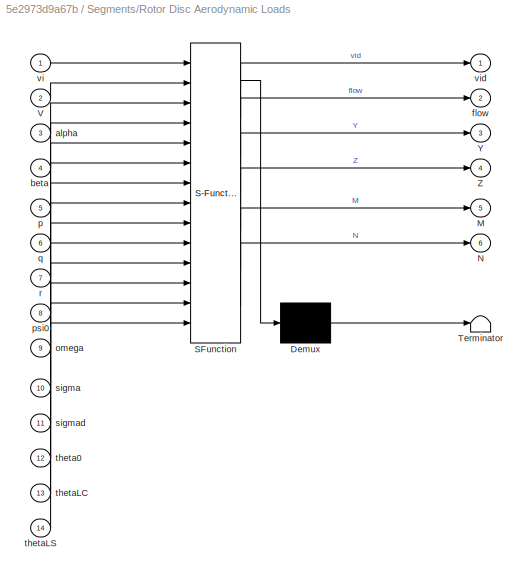
BLOCK [SubSystem] Segments/Rotor Disc Aerodynamic Loads
  ErrorFcn = Stateflow.Translate.translate
  FunctionWithSeparateData = off
  MaskHideContents = off
  MinAlgLoopOccurrences = off
  Opaque = off
  PermitHierarchicalResolution = ExplicitOnly
  Ports = [14, 6]
  PropExecContextOutsideSubsystem = off
  RTWSystemCode = Auto
  RequestExecContextInheritance = off
  SFBlockType = MATLAB Function
  TreatAsAtomicUnit = on
BLOCK [Demux] Segments/Rotor Disc Aerodynamic Loads/ Demux 
  Outputs = 1
  Ports = [1, 1]
BLOCK [S-Function] Segments/Rotor Disc Aerodynamic Loads/ SFunction 
  EnableBusSupport = off
  FunctionName = sf_sfun
  Parameters = WT_Params
  PortCounts = [14 7]
  Ports = [14, 7]
  Tag = Stateflow S-Function Wind_Lib 1
BLOCK [Terminator] Segments/Rotor Disc Aerodynamic Loads/ Terminator 
BLOCK [Outport] Segments/Rotor Disc Aerodynamic Loads/M
  IconDisplay = Port number
  Port = 5
BLOCK [Outport] Segments/Rotor Disc Aerodynamic Loads/N
  IconDisplay = Port number
  Port = 6
BLOCK [Inport] Segments/Rotor Disc Aerodynamic Loads/V
  IconDisplay = Port number
  Port = 2
BLOCK [Outport] Segments/Rotor Disc Aerodynamic Loads/Y
  IconDisplay = Port number
  Port = 3
BLOCK [Outport] Segments/Rotor Disc Aerodynamic Loads/Z
  IconDisplay = Port number
  Port = 4
BLOCK [Inport] Segments/Rotor Disc Aerodynamic Loads/alpha
  IconDisplay = Port number
  Port = 3
BLOCK [Inport] Segments/Rotor Disc Aerodynamic Loads/beta
  IconDisplay = Port number
  Port = 4
BLOCK [Outport] Segments/Rotor Disc Aerodynamic Loads/flow
  IconDisplay = Port number
  Port = 2
BLOCK [Inport] Segments/Rotor Disc Aerodynamic Loads/omega
  IconDisplay = Port number
  Port = 9
BLOCK [Inport] Segments/Rotor Disc Aerodynamic Loads/p
  IconDisplay = Port number
  Port = 5
BLOCK [Inport] Segments/Rotor Disc Aerodynamic Loads/psi0
  IconDisplay = Port number
  Port = 8
BLOCK [Inport] Segments/Rotor Disc Aerodynamic Loads/q
  IconDisplay = Port number
  Port = 6
BLOCK [Inport] Segments/Rotor Disc Aerodynamic Loads/r
  IconDisplay = Port number
  Port = 7
BLOCK [Inport] Segments/Rotor Disc Aerodynamic Loads/sigma
  IconDisplay = Port number
  Port = 10
BLOCK [Inport] Segments/Rotor Disc Aerodynamic Loads/sigmad
  IconDisplay = Port number
  Port = 11
BLOCK [Inport] Segments/Rotor Disc Aerodynamic Loads/theta0
  IconDisplay = Port number
  Port = 12
BLOCK [Inport] Segments/Rotor Disc Aerodynamic Loads/thetaLC
  IconDisplay = Port number
  Port = 13
BLOCK [Inport] Segments/Rotor Disc Aerodynamic Loads/thetaLS
  IconDisplay = Port number
  Port = 14
BLOCK [Inport] Segments/Rotor Disc Aerodynamic Loads/vi
  IconDisplay = Port number
BLOCK [Outport] Segments/Rotor Disc Aerodynamic Loads/vid
  IconDisplay = Port number
BLOCK [Signum] Segments/Sign
BLOCK [Sum] Segments/Sum
  IconShape = round
  InputSameDT = off
  Inputs = -|+
  OutDataTypeStr = Inherit: Inherit via internal rule
  Ports = [2, 1]
  SaturateOnIntegerOverflow = off
BLOCK [Terminator] Segments/Terminator
BLOCK [Terminator] Segments/Terminator1
BLOCK [Terminator] Segments/Terminator2
BLOCK [Trigonometry] Segments/Trigonometric Function2
  Operator = cos
  Ports = [1, 1]
BLOCK [Trigonometry] Segments/Trigonometric Function3
  Operator = asin
  Ports = [1, 1]
BLOCK [Trigonometry] Segments/Trigonometric Function4
  Ports = [1, 1]
BLOCK [Trigonometry] Segments/Trigonometric Function5
  Operator = asin
  Ports = [1, 1]
BLOCK [Trigonometry] Segments/Trigonometric Function6
  Operator = cos
  Ports = [1, 1]
BLOCK [Trigonometry] Segments/Trigonometric Function7
  Ports = [1, 1]
BLOCK [Gain] Segments/deg2rad
  Gain = pi/180
  OutDataTypeStr = Inherit: Inherit via internal rule
  ParamDataTypeStr = Inherit: Inherit via internal rule
  SaturateOnIntegerOverflow = off
BLOCK [Selector] Segments/use blade #1
  IndexOptions = Index vector (dialog)
  Indices = [1]
  InputPortWidth = 3
  OutputSizes = 1
  Ports = [1, 1]
BLOCK [SubSystem] Torque
  FunctionWithSeparateData = off
  MaskHideContents = off
  MinAlgLoopOccurrences = off
  Opaque = off
  Ports = [1, 0, 0, 0, 0, 0, 3]
  PropExecContextOutsideSubsystem = off
  RTWSystemCode = Auto
  RequestExecContextInheritance = off
BLOCK [Reference] Torque/Apply Moments  REF=Wind_Lib/Segments/Apply
Moments
  Ports = [3, 0, 0, 0, 0, 0, 3]
  SourceBlock = Wind_Lib/Segments/Apply\nMoments
  SourceType = SubSystem
BLOCK [PMIOPort] Torque/B1
  Port = 3
  Side = Right
  Tag = PMCPort
BLOCK [PMIOPort] Torque/B2
  Port = 2
  Side = Right
  Tag = PMCPort
BLOCK [PMIOPort] Torque/B3
  Port = 1
  Side = Right
  Tag = PMCPort
BLOCK [Switch] Torque/Brake Check
  Criteria = u2 > Threshold
  InputSameDT = off
  SaturateOnIntegerOverflow = off
BLOCK [BusSelector] Torque/Bus Selector
  OutputSignals = Parking_Brake,Blade_Torque
  Ports = [1, 2]
BLOCK [Gain] Torque/Gain
  Gain = -1
  OutDataTypeStr = Inherit: Inherit via internal rule
  ParamDataTypeStr = Inherit: Inherit via internal rule
  SaturateOnIntegerOverflow = off
BLOCK [Inport] Torque/Input
  IconDisplay = Port number
BLOCK [Mux] Torque/Mux
  DisplayOption = bar
  Inputs = 2
  Ports = [2, 1]
BLOCK [Constant] Torque/No Torque
  Value = 0
BLOCK [Constant] Torque/Torque Blade 2, 3
  Value = [0 0 0]
BLOCK [Constant] Torque/Torque Y, Z
  Value = [0 0]
BLOCK [SubSystem] Torque/Unused Gotos
  FunctionWithSeparateData = off
  MaskHideContents = off
  MinAlgLoopOccurrences = off
  Opaque = off
  Ports = []
  PropExecContextOutsideSubsystem = off
  RTWSystemCode = Auto
  RequestExecContextInheritance = off
BLOCK [Constant] Torque/Unused Gotos/Constant
  Value = 0
BLOCK [Constant] Torque/Unused Gotos/Constant2
  Value = zeros(1,10)
BLOCK [Goto] Torque/Unused Gotos/Goto_Lift_Calculation1
  GotoTag = AoA_Calculation
  TagVisibility = global
BLOCK [Goto] Torque/Unused Gotos/Goto_Lift_Calculation2
  GotoTag = Coeff_Lift_Approx
  TagVisibility = global
BLOCK [Goto] Torque/Unused Gotos/Goto_Lift_Calculation3
  GotoTag = Lift_Calculation
  TagVisibility = global
BLOCK [Goto] Torque/Unused Gotos/Goto_Lift_Calculation4
  GotoTag = Drag_Calculation
  TagVisibility = global
LINE Blade Load Scopes/Demux1:1 -> Blade Load Scopes/Drag Calculation:1
LINE Blade Load Scopes/Demux1:2 -> Blade Load Scopes/Drag Calculation:2
LINE Blade Load Scopes/Demux1:3 -> Blade Load Scopes/Drag Calculation:3
NET Blade Load Scopes/Demux1:4 -> Blade Load Scopes/Drag Calculation:4, Blade Load Scopes/Selector1:1
LINE Blade Load Scopes/Demux2:1 -> Blade Load Scopes/Blade Bearing Loads:1
LINE Blade Load Scopes/Demux2:2 -> Blade Load Scopes/Blade Bearing Loads:2
LINE Blade Load Scopes/Demux2:3 -> Blade Load Scopes/Terminator:1
LINE Blade Load Scopes/Demux:1 -> Blade Load Scopes/Lift Calculation:1
LINE Blade Load Scopes/Demux:2 -> Blade Load Scopes/Lift Calculation:2
LINE Blade Load Scopes/Demux:3 -> Blade Load Scopes/Lift Calculation:3
NET Blade Load Scopes/Demux:4 -> Blade Load Scopes/Lift Calculation:4, Blade Load Scopes/Selector:1
LINE Blade Load Scopes/From_AoA_Calculation:1 -> Blade Load Scopes/Blade Pitch, AoA Zero Pitch:1
LINE Blade Load Scopes/From_Coeff_Lift_Approx1:1 -> Blade Load Scopes/Demux2:1
LINE Blade Load Scopes/From_Coeff_Lift_Approx:1 -> Blade Load Scopes/Coeff Approx:1
LINE Blade Load Scopes/From_Drag_Calculation:1 -> Blade Load Scopes/Demux1:1
LINE Blade Load Scopes/From_Lift_Calculation:1 -> Blade Load Scopes/Demux:1
LINE Blade Load Scopes/From_Rotor_State_Enum:1 -> Blade Load Scopes/1 = Heli 2 = Young's Approx 3 = Windmill:1
LINE Blade Load Scopes/Mux1:1 -> Blade Load Scopes/Lift, Drag:1
LINE Blade Load Scopes/Selector1:1 -> Blade Load Scopes/Mux1:2
LINE Blade Load Scopes/Selector:1 -> Blade Load Scopes/Mux1:1
LINE Blade Load/Input:1 -> Blade Load/Lift and Drag:1
LINE Lift and Drag (Simscape)/From_Blade_Pitch:1 -> Lift and Drag (Simscape)/Selector:1
LINE Lift and Drag (Simscape)/From_Rotor_Speed_Position:1 -> Lift and Drag (Simscape)/Selector1:1
NET Lift and Drag (Simscape)/Input:1 -> Lift and Drag (Simscape)/Goto_Lift_Calculation:1, Lift and Drag (Simscape)/Selector2:1
NET Lift and Drag (Simscape)/Lag Pitch/Gain:1 -> Lift and Drag (Simscape)/Lag Pitch/Out:1, Lift and Drag (Simscape)/Lag Pitch/Sum:2
LINE Lift and Drag (Simscape)/Lag Pitch/In:1 -> Lift and Drag (Simscape)/Lag Pitch/Sum:1
LINE Lift and Drag (Simscape)/Lag Pitch/Integrator:1 -> Lift and Drag (Simscape)/Lag Pitch/Gain:1
LINE Lift and Drag (Simscape)/Lag Pitch/Sum:1 -> Lift and Drag (Simscape)/Lag Pitch/Integrator:1
LINE Lift and Drag (Simscape)/Lag Pitch:1 -> Lift and Drag (Simscape)/Simulink-PS Converter2:1
NET Lift and Drag (Simscape)/Lag Rotor Spd/Gain:1 -> Lift and Drag (Simscape)/Lag Rotor Spd/Out:1, Lift and Drag (Simscape)/Lag Rotor Spd/Sum:2
LINE Lift and Drag (Simscape)/Lag Rotor Spd/In:1 -> Lift and Drag (Simscape)/Lag Rotor Spd/Sum:1
LINE Lift and Drag (Simscape)/Lag Rotor Spd/Integrator:1 -> Lift and Drag (Simscape)/Lag Rotor Spd/Gain:1
LINE Lift and Drag (Simscape)/Lag Rotor Spd/Sum:1 -> Lift and Drag (Simscape)/Lag Rotor Spd/Integrator:1
LINE Lift and Drag (Simscape)/Lag Rotor Spd:1 -> Lift and Drag (Simscape)/Simulink-PS Converter1:1
LINE Lift and Drag (Simscape)/Selector1:1 -> Lift and Drag (Simscape)/Lag Rotor Spd:1
LINE Lift and Drag (Simscape)/Selector2:1 -> Lift and Drag (Simscape)/Simulink-PS Converter:1
LINE Lift and Drag (Simscape)/Selector:1 -> Lift and Drag (Simscape)/Lag Pitch:1
LINE Lift and Drag/Apply Moments/Bend:1 -> Lift and Drag/Apply Moments/Simulink-PS Converter1:1
LINE Lift and Drag/Apply Moments/Gain:1 -> Lift and Drag/Apply Moments/Simulink-PS Converter:1
LINE Lift and Drag/Apply Moments/Pitch Moment:1 -> Lift and Drag/Apply Moments/Simulink-PS Converter2:1
LINE Lift and Drag/Apply Moments/Spin:1 -> Lift and Drag/Apply Moments/Gain:1
LINE Lift and Drag/Blade Length:1 -> Lift and Drag/Point of Application:1
LINE Lift and Drag/Calculate Angle of Attack/Blade Speed:1 -> Lift and Drag/Calculate Angle of Attack/Trigonometric Function:2
LINE Lift and Drag/Calculate Angle of Attack/Pitch Angle:1 -> Lift and Drag/Calculate Angle of Attack/Subtract:2
LINE Lift and Drag/Calculate Angle of Attack/Subtract:1 -> Lift and Drag/Calculate Angle of Attack/Angle of Attack:1
LINE Lift and Drag/Calculate Angle of Attack/Trigonometric Function:1 -> Lift and Drag/Calculate Angle of Attack/Subtract:1
LINE Lift and Drag/Calculate Angle of Attack/Wind Speed:1 -> Lift and Drag/Calculate Angle of Attack/Trigonometric Function:1
NET Lift and Drag/Calculate Angle of Attack:1 -> Lift and Drag/Obtain Lift and Drag Constants:1, Lift and Drag/Resolve Moments:3
LINE Lift and Drag/Calculate Lift and Drag Forces/Add:1 -> Lift and Drag/Calculate Lift and Drag Forces/Divide1:3
LINE Lift and Drag/Calculate Lift and Drag Forces/Blade Speed:1 -> Lift and Drag/Calculate Lift and Drag Forces/Math Function1:1
LINE Lift and Drag/Calculate Lift and Drag Forces/Cd:1 -> Lift and Drag/Calculate Lift and Drag Forces/Divide5:2
LINE Lift and Drag/Calculate Lift and Drag Forces/Cl:1 -> Lift and Drag/Calculate Lift and Drag Forces/Divide4:2
LINE Lift and Drag/Calculate Lift and Drag Forces/Divide1:1 -> Lift and Drag/Calculate Lift and Drag Forces/R*c:1
LINE Lift and Drag/Calculate Lift and Drag Forces/Divide4:1 -> Lift and Drag/Calculate Lift and Drag Forces/Lift Force:1
LINE Lift and Drag/Calculate Lift and Drag Forces/Divide5:1 -> Lift and Drag/Calculate Lift and Drag Forces/Drag Force:1
LINE Lift and Drag/Calculate Lift and Drag Forces/Math Function1:1 -> Lift and Drag/Calculate Lift and Drag Forces/Add:2
LINE Lift and Drag/Calculate Lift and Drag Forces/Math Function2:1 -> Lift and Drag/Calculate Lift and Drag Forces/Add:1
NET Lift and Drag/Calculate Lift and Drag Forces/R*c:1 -> Lift and Drag/Calculate Lift and Drag Forces/Divide4:1, Lift and Drag/Calculate Lift and Drag Forces/Divide5:1
LINE Lift and Drag/Calculate Lift and Drag Forces/Wind Speed:1 -> Lift and Drag/Calculate Lift and Drag Forces/Math Function2:1
LINE Lift and Drag/Calculate Lift and Drag Forces/f2:1 -> Lift and Drag/Calculate Lift and Drag Forces/Divide1:1
LINE Lift and Drag/Calculate Lift and Drag Forces/rho:1 -> Lift and Drag/Calculate Lift and Drag Forces/Divide1:2
LINE Lift and Drag/Calculate Lift and Drag Forces:1 -> Lift and Drag/Resolve Moments:1
LINE Lift and Drag/Calculate Lift and Drag Forces:2 -> Lift and Drag/Resolve Moments:2
NET Lift and Drag/Divide:1 -> Lift and Drag/Calculate Angle of Attack:2, Lift and Drag/Calculate Lift and Drag Forces:2
LINE Lift and Drag/From_Blade_Pitch:1 -> Lift and Drag/Selector:1
LINE Lift and Drag/From_Rotor_Speed_Position:1 -> Lift and Drag/Selector1:1
NET Lift and Drag/Input:1 -> Lift and Drag/Goto_Lift_Calculation:1, Lift and Drag/Selector2:1
NET Lift and Drag/Lag Pitch/Gain:1 -> Lift and Drag/Lag Pitch/Out:1, Lift and Drag/Lag Pitch/Sum:2
LINE Lift and Drag/Lag Pitch/In:1 -> Lift and Drag/Lag Pitch/Sum:1
LINE Lift and Drag/Lag Pitch/Integrator:1 -> Lift and Drag/Lag Pitch/Gain:1
LINE Lift and Drag/Lag Pitch/Sum:1 -> Lift and Drag/Lag Pitch/Integrator:1
LINE Lift and Drag/Lag Pitch:1 -> Lift and Drag/Calculate Angle of Attack:3
NET Lift and Drag/Lag Rotor Spd/Gain:1 -> Lift and Drag/Lag Rotor Spd/Out:1, Lift and Drag/Lag Rotor Spd/Sum:2
LINE Lift and Drag/Lag Rotor Spd/In:1 -> Lift and Drag/Lag Rotor Spd/Sum:1
LINE Lift and Drag/Lag Rotor Spd/Integrator:1 -> Lift and Drag/Lag Rotor Spd/Gain:1
LINE Lift and Drag/Lag Rotor Spd/Sum:1 -> Lift and Drag/Lag Rotor Spd/Integrator:1
LINE Lift and Drag/Lag Rotor Spd:1 -> Lift and Drag/Divide:1
LINE Lift and Drag/Obtain Lift and Drag Constants/Angle of Attack:1 -> Lift and Drag/Obtain Lift and Drag Constants/Math Function:1
NET Lift and Drag/Obtain Lift and Drag Constants/Math Function:1 -> Lift and Drag/Obtain Lift and Drag Constants/drag polar:1, Lift and Drag/Obtain Lift and Drag Constants/lift polar:1
LINE Lift and Drag/Obtain Lift and Drag Constants/drag polar:1 -> Lift and Drag/Obtain Lift and Drag Constants/Cd:1
LINE Lift and Drag/Obtain Lift and Drag Constants/f1:1 -> Lift and Drag/Obtain Lift and Drag Constants/Math Function:2
LINE Lift and Drag/Obtain Lift and Drag Constants/lift polar:1 -> Lift and Drag/Obtain Lift and Drag Constants/Cl:1
LINE Lift and Drag/Obtain Lift and Drag Constants:1 -> Lift and Drag/Calculate Lift and Drag Forces:3
LINE Lift and Drag/Obtain Lift and Drag Constants:2 -> Lift and Drag/Calculate Lift and Drag Forces:4
NET Lift and Drag/Point of Application:1 -> Lift and Drag/Divide:2, Lift and Drag/Resolve Moments:4
NET Lift and Drag/Resolve Moments/Angle of Attack:1 -> Lift and Drag/Resolve Moments/Trigonometric Function1:1, Lift and Drag/Resolve Moments/Trigonometric Function2:1
LINE Lift and Drag/Resolve Moments/Divide11:1 -> Lift and Drag/Resolve Moments/Bend Moment:1
LINE Lift and Drag/Resolve Moments/Divide12:1 -> Lift and Drag/Resolve Moments/Spin Moment:1
LINE Lift and Drag/Resolve Moments/Divide6:1 -> Lift and Drag/Resolve Moments/Subtract1:1
LINE Lift and Drag/Resolve Moments/Divide7:1 -> Lift and Drag/Resolve Moments/Subtract1:2
LINE Lift and Drag/Resolve Moments/Divide8:1 -> Lift and Drag/Resolve Moments/Subtract2:1
LINE Lift and Drag/Resolve Moments/Divide9:1 -> Lift and Drag/Resolve Moments/Subtract2:2
NET Lift and Drag/Resolve Moments/Drag Force:1 -> Lift and Drag/Resolve Moments/Divide7:1, Lift and Drag/Resolve Moments/Divide9:1
LINE Lift and Drag/Resolve Moments/Gain:1 -> Lift and Drag/Resolve Moments/Divide11:2
NET Lift and Drag/Resolve Moments/Lift Force:1 -> Lift and Drag/Resolve Moments/Divide6:1, Lift and Drag/Resolve Moments/Divide8:1
NET Lift and Drag/Resolve Moments/Radius:1 -> Lift and Drag/Resolve Moments/Divide12:1, Lift and Drag/Resolve Moments/Gain:1
LINE Lift and Drag/Resolve Moments/Subtract1:1 -> Lift and Drag/Resolve Moments/Divide11:1
LINE Lift and Drag/Resolve Moments/Subtract2:1 -> Lift and Drag/Resolve Moments/Divide12:2
NET Lift and Drag/Resolve Moments/Trigonometric Function1:1 -> Lift and Drag/Resolve Moments/Divide6:2, Lift and Drag/Resolve Moments/Divide9:2
NET Lift and Drag/Resolve Moments/Trigonometric Function2:1 -> Lift and Drag/Resolve Moments/Divide7:2, Lift and Drag/Resolve Moments/Divide8:2
LINE Lift and Drag/Resolve Moments:1 -> Lift and Drag/Apply Moments:1
LINE Lift and Drag/Resolve Moments:2 -> Lift and Drag/Apply Moments:2
LINE Lift and Drag/Selector1:1 -> Lift and Drag/Lag Rotor Spd:1
NET Lift and Drag/Selector2:1 -> Lift and Drag/Calculate Angle of Attack:1, Lift and Drag/Calculate Lift and Drag Forces:1
LINE Lift and Drag/Selector:1 -> Lift and Drag/Lag Pitch:1
LINE Segments/Apply Moments/B1Trq:1 -> Segments/Apply Moments/Lag Blade Loads 1:1
LINE Segments/Apply Moments/B2Trq:1 -> Segments/Apply Moments/Lag Blade Loads 2:1
LINE Segments/Apply Moments/B3Trq:1 -> Segments/Apply Moments/Lag Blade Loads 3:1
LINE Segments/Apply Moments/Demux1:1 -> Segments/Apply Moments/Simulink-PS Converter3:1
LINE Segments/Apply Moments/Demux1:2 -> Segments/Apply Moments/Simulink-PS Converter4:1
LINE Segments/Apply Moments/Demux1:3 -> Segments/Apply Moments/Simulink-PS Converter5:1
LINE Segments/Apply Moments/Demux2:1 -> Segments/Apply Moments/Simulink-PS Converter6:1
LINE Segments/Apply Moments/Demux2:2 -> Segments/Apply Moments/Simulink-PS Converter7:1
LINE Segments/Apply Moments/Demux2:3 -> Segments/Apply Moments/Simulink-PS Converter8:1
LINE Segments/Apply Moments/Demux:1 -> Segments/Apply Moments/Simulink-PS Converter:1
LINE Segments/Apply Moments/Demux:2 -> Segments/Apply Moments/Simulink-PS Converter1:1
LINE Segments/Apply Moments/Demux:3 -> Segments/Apply Moments/Simulink-PS Converter2:1
NET Segments/Apply Moments/Lag Blade Loads 1/Gain:1 -> Segments/Apply Moments/Lag Blade Loads 1/Out:1, Segments/Apply Moments/Lag Blade Loads 1/Sum:2
LINE Segments/Apply Moments/Lag Blade Loads 1/In:1 -> Segments/Apply Moments/Lag Blade Loads 1/Sum:1
LINE Segments/Apply Moments/Lag Blade Loads 1/Integrator:1 -> Segments/Apply Moments/Lag Blade Loads 1/Gain:1
LINE Segments/Apply Moments/Lag Blade Loads 1/Sum:1 -> Segments/Apply Moments/Lag Blade Loads 1/Integrator:1
LINE Segments/Apply Moments/Lag Blade Loads 1:1 -> Segments/Apply Moments/Demux:1
NET Segments/Apply Moments/Lag Blade Loads 2/Gain:1 -> Segments/Apply Moments/Lag Blade Loads 2/Out:1, Segments/Apply Moments/Lag Blade Loads 2/Sum:2
LINE Segments/Apply Moments/Lag Blade Loads 2/In:1 -> Segments/Apply Moments/Lag Blade Loads 2/Sum:1
LINE Segments/Apply Moments/Lag Blade Loads 2/Integrator:1 -> Segments/Apply Moments/Lag Blade Loads 2/Gain:1
LINE Segments/Apply Moments/Lag Blade Loads 2/Sum:1 -> Segments/Apply Moments/Lag Blade Loads 2/Integrator:1
LINE Segments/Apply Moments/Lag Blade Loads 2:1 -> Segments/Apply Moments/Demux1:1
NET Segments/Apply Moments/Lag Blade Loads 3/Gain:1 -> Segments/Apply Moments/Lag Blade Loads 3/Out:1, Segments/Apply Moments/Lag Blade Loads 3/Sum:2
LINE Segments/Apply Moments/Lag Blade Loads 3/In:1 -> Segments/Apply Moments/Lag Blade Loads 3/Sum:1
LINE Segments/Apply Moments/Lag Blade Loads 3/Integrator:1 -> Segments/Apply Moments/Lag Blade Loads 3/Gain:1
LINE Segments/Apply Moments/Lag Blade Loads 3/Sum:1 -> Segments/Apply Moments/Lag Blade Loads 3/Integrator:1
LINE Segments/Apply Moments/Lag Blade Loads 3:1 -> Segments/Apply Moments/Demux2:1
LINE Segments/Constant1:1 -> Segments/Rotor Disc Aerodynamic Loads:11
LINE Segments/Constant8:1 -> Segments/Rotor Disc Aerodynamic Loads:10
LINE Segments/Demux1:1 -> Segments/Product1:1
LINE Segments/Demux1:2 -> Segments/Product5:1
LINE Segments/Demux1:3 -> Segments/Product4:1
LINE Segments/Demux2:1 -> Segments/Rotor Disc Aerodynamic Loads:8
LINE Segments/Demux2:2 -> Segments/Rotor Disc Aerodynamic Loads:9
LINE Segments/Demux:1 -> Segments/Rotor Disc Aerodynamic Loads:2
LINE Segments/Demux:2 -> Segments/Sum:1
LINE Segments/From_Blade_Pitch1:1 -> Segments/Sum:2
LINE Segments/From_Blade_Pitch:1 -> Segments/use blade #1:1
LINE Segments/From_Rotor_Speed_Position:1 -> Segments/Demux2:1
LINE Segments/Gain1:1 -> Segments/Demux1:1
LINE Segments/Gain2:1 -> Segments/Mux1:1
NET Segments/Gain8:1 -> Segments/Rotor Disc Aerodynamic Loads:12, Segments/Trigonometric Function6:1, Segments/Trigonometric Function7:1
LINE Segments/Gain:1 -> Segments/Goto_Induced_Velocity:1
LINE Segments/Ground1:1 -> Segments/Rotor Disc Aerodynamic Loads:5
LINE Segments/Ground2:1 -> Segments/Rotor Disc Aerodynamic Loads:6
LINE Segments/Ground3:1 -> Segments/Rotor Disc Aerodynamic Loads:7
LINE Segments/Ground4:1 -> Segments/Rotor Disc Aerodynamic Loads:13
LINE Segments/Ground5:1 -> Segments/Rotor Disc Aerodynamic Loads:14
LINE Segments/Ground6:1 -> Segments/Mux1:3
NET Segments/Input:1 -> Segments/Demux:1, Segments/Goto_Lift_Calculation:1
NET Segments/Integrator:1 -> Segments/Gain:1, Segments/Rotor Disc Aerodynamic Loads:1
NET Segments/Mux1:1 -> Segments/Product1:2, Segments/Product4:2, Segments/Product5:2
LINE Segments/Product1:1 -> Segments/Apply Moments:1
LINE Segments/Product4:1 -> Segments/Apply Moments:3
LINE Segments/Product5:1 -> Segments/Apply Moments:2
LINE Segments/Rotor Disc Aerodynamic Loads:1 -> Segments/Integrator:1
LINE Segments/Rotor Disc Aerodynamic Loads:2 -> Segments/Goto_Rotor_State_Enum:1
LINE Segments/Rotor Disc Aerodynamic Loads:3 -> Segments/Terminator:1
LINE Segments/Rotor Disc Aerodynamic Loads:4 -> Segments/Terminator1:1
LINE Segments/Rotor Disc Aerodynamic Loads:5 -> Segments/Terminator2:1
LINE Segments/Rotor Disc Aerodynamic Loads:6 -> Segments/Gain1:1
LINE Segments/Sign:1 -> Segments/Trigonometric Function3:1
LINE Segments/Sum:1 -> Segments/deg2rad:1
LINE Segments/Trigonometric Function2:1 -> Segments/Sign:1
LINE Segments/Trigonometric Function3:1 -> Segments/Rotor Disc Aerodynamic Loads:3
LINE Segments/Trigonometric Function4:1 -> Segments/Trigonometric Function5:1
LINE Segments/Trigonometric Function5:1 -> Segments/Rotor Disc Aerodynamic Loads:4
LINE Segments/Trigonometric Function6:1 -> Segments/Gain2:1
LINE Segments/Trigonometric Function7:1 -> Segments/Mux1:2
NET Segments/deg2rad:1 -> Segments/Trigonometric Function2:1, Segments/Trigonometric Function4:1
LINE Segments/use blade #1:1 -> Segments/Gain8:1
LINE Torque/Brake Check:1 -> Torque/Gain:1
LINE Torque/Bus Selector:1 -> Torque/Brake Check:2
LINE Torque/Bus Selector:2 -> Torque/Brake Check:3
LINE Torque/Gain:1 -> Torque/Mux:1
LINE Torque/Input:1 -> Torque/Bus Selector:1
LINE Torque/Mux:1 -> Torque/Apply Moments:1
LINE Torque/No Torque:1 -> Torque/Brake Check:1
NET Torque/Torque Blade 2, 3:1 -> Torque/Apply Moments:2, Torque/Apply Moments:3
LINE Torque/Torque Y, Z:1 -> Torque/Mux:2
NET Torque/Unused Gotos/Constant2:1 -> Torque/Unused Gotos/Goto_Lift_Calculation3:1, Torque/Unused Gotos/Goto_Lift_Calculation4:1
NET Torque/Unused Gotos/Constant:1 -> Torque/Unused Gotos/Goto_Lift_Calculation1:1, Torque/Unused Gotos/Goto_Lift_Calculation2:1
PLINE Blade Load/B1:RConn1 -- Blade Load/Lift and Drag:RConn3
PLINE Blade Load/B2:RConn1 -- Blade Load/Lift and Drag:RConn2
PLINE Blade Load/B3:RConn1 -- Blade Load/Lift and Drag:RConn1
PLINE Lift and Drag (Simscape)/Apply Moments/B1:RConn1 -- Lift and Drag (Simscape)/Apply Moments/External Force and Torque1:RConn1
PLINE Lift and Drag (Simscape)/Apply Moments/B2:RConn1 -- Lift and Drag (Simscape)/Apply Moments/External Force and Torque2:RConn1
PLINE Lift and Drag (Simscape)/Apply Moments/B3:RConn1 -- Lift and Drag (Simscape)/Apply Moments/External Force and Torque3:RConn1
PNET net1: Lift and Drag (Simscape)/Apply Moments/Bend:RConn1 -- Lift and Drag (Simscape)/Apply Moments/External Force and Torque1:LConn2 -- Lift and Drag (Simscape)/Apply Moments/External Force and Torque2:LConn2 -- Lift and Drag (Simscape)/Apply Moments/External Force and Torque3:LConn2
PNET net2: Lift and Drag (Simscape)/Apply Moments/External Force and Torque1:LConn1 -- Lift and Drag (Simscape)/Apply Moments/External Force and Torque2:LConn1 -- Lift and Drag (Simscape)/Apply Moments/External Force and Torque3:LConn1 -- Lift and Drag (Simscape)/Apply Moments/PS Gain:RConn1
PNET net3: Lift and Drag (Simscape)/Apply Moments/External Force and Torque1:LConn3 -- Lift and Drag (Simscape)/Apply Moments/External Force and Torque2:LConn3 -- Lift and Drag (Simscape)/Apply Moments/External Force and Torque3:LConn3 -- Lift and Drag (Simscape)/Apply Moments/PS Constant:RConn1
PLINE Lift and Drag (Simscape)/Apply Moments/PS Gain:LConn1 -- Lift and Drag (Simscape)/Apply Moments/Spin:RConn1
PLINE Lift and Drag (Simscape)/Apply Moments:LConn1 -- Lift and Drag (Simscape)/Bending and Spinning Moments:RConn1
PLINE Lift and Drag (Simscape)/Apply Moments:LConn2 -- Lift and Drag (Simscape)/Bending and Spinning Moments:RConn2
PLINE Lift and Drag (Simscape)/Apply Moments:RConn1 -- Lift and Drag (Simscape)/B1:RConn1
PLINE Lift and Drag (Simscape)/Apply Moments:RConn2 -- Lift and Drag (Simscape)/B2:RConn1
PLINE Lift and Drag (Simscape)/Apply Moments:RConn3 -- Lift and Drag (Simscape)/B3:RConn1
PLINE Lift and Drag (Simscape)/Bending and Spinning Moments:LConn1 -- Lift and Drag (Simscape)/Simulink-PS Converter:RConn1
PLINE Lift and Drag (Simscape)/Bending and Spinning Moments:LConn2 -- Lift and Drag (Simscape)/Simulink-PS Converter1:RConn1
PLINE Lift and Drag (Simscape)/Bending and Spinning Moments:LConn3 -- Lift and Drag (Simscape)/Simulink-PS Converter2:RConn1
PLINE Lift and Drag (Simscape)/Bending and Spinning Moments:LConn4 -- Lift and Drag (Simscape)/lift polar:RConn1
PLINE Lift and Drag (Simscape)/Bending and Spinning Moments:LConn5 -- Lift and Drag (Simscape)/drag polar:RConn1
PLINE Lift and Drag (Simscape)/Bending and Spinning Moments:RConn3 -- Lift and Drag (Simscape)/modulus 2*pi:LConn1
PNET net4: Lift and Drag (Simscape)/drag polar:LConn1 -- Lift and Drag (Simscape)/lift polar:LConn1 -- Lift and Drag (Simscape)/modulus 2*pi:RConn1
PNET net5: Lift and Drag (Simscape)/modulus 2*pi/2*pi:RConn1 -- Lift and Drag (Simscape)/modulus 2*pi/PS Divide:LConn2 -- Lift and Drag (Simscape)/modulus 2*pi/PS Product:LConn2
PNET net6: Lift and Drag (Simscape)/modulus 2*pi/AoA:RConn1 -- Lift and Drag (Simscape)/modulus 2*pi/PS Divide:LConn1 -- Lift and Drag (Simscape)/modulus 2*pi/PS Subtract:LConn1
PLINE Lift and Drag (Simscape)/modulus 2*pi/PS Divide:RConn1 -- Lift and Drag (Simscape)/modulus 2*pi/PS Floor:LConn1
PLINE Lift and Drag (Simscape)/modulus 2*pi/PS Floor:RConn1 -- Lift and Drag (Simscape)/modulus 2*pi/PS Product:LConn1
PLINE Lift and Drag (Simscape)/modulus 2*pi/PS Product:RConn1 -- Lift and Drag (Simscape)/modulus 2*pi/PS Subtract:LConn2
PLINE Lift and Drag (Simscape)/modulus 2*pi/PS Subtract:RConn1 -- Lift and Drag (Simscape)/modulus 2*pi/mod(AoA,2*pi):RConn1
PLINE Lift and Drag/Apply Moments/B1:RConn1 -- Lift and Drag/Apply Moments/External Force and Torque1:RConn1
PLINE Lift and Drag/Apply Moments/B2:RConn1 -- Lift and Drag/Apply Moments/External Force and Torque2:RConn1
PLINE Lift and Drag/Apply Moments/B3:RConn1 -- Lift and Drag/Apply Moments/External Force and Torque3:RConn1
PNET net7: Lift and Drag/Apply Moments/External Force and Torque1:LConn1 -- Lift and Drag/Apply Moments/External Force and Torque2:LConn1 -- Lift and Drag/Apply Moments/External Force and Torque3:LConn1 -- Lift and Drag/Apply Moments/Simulink-PS Converter:RConn1
PNET net8: Lift and Drag/Apply Moments/External Force and Torque1:LConn2 -- Lift and Drag/Apply Moments/External Force and Torque2:LConn2 -- Lift and Drag/Apply Moments/External Force and Torque3:LConn2 -- Lift and Drag/Apply Moments/Simulink-PS Converter1:RConn1
PNET net9: Lift and Drag/Apply Moments/External Force and Torque1:LConn3 -- Lift and Drag/Apply Moments/External Force and Torque2:LConn3 -- Lift and Drag/Apply Moments/External Force and Torque3:LConn3 -- Lift and Drag/Apply Moments/Simulink-PS Converter2:RConn1
PLINE Lift and Drag/Apply Moments:RConn1 -- Lift and Drag/B1:RConn1
PLINE Lift and Drag/Apply Moments:RConn2 -- Lift and Drag/B2:RConn1
PLINE Lift and Drag/Apply Moments:RConn3 -- Lift and Drag/B3:RConn1
PLINE Segments/Apply Moments/B1:RConn1 -- Segments/Apply Moments/External Force and Torque B1:RConn1
PLINE Segments/Apply Moments/B2:RConn1 -- Segments/Apply Moments/External Force and Torque B2:RConn1
PLINE Segments/Apply Moments/B3:RConn1 -- Segments/Apply Moments/External Force and Torque B3:RConn1
PLINE Segments/Apply Moments/External Force and Torque B1:LConn1 -- Segments/Apply Moments/Simulink-PS Converter:RConn1
PLINE Segments/Apply Moments/External Force and Torque B1:LConn2 -- Segments/Apply Moments/Simulink-PS Converter1:RConn1
PLINE Segments/Apply Moments/External Force and Torque B1:LConn3 -- Segments/Apply Moments/Simulink-PS Converter2:RConn1
PLINE Segments/Apply Moments/External Force and Torque B2:LConn1 -- Segments/Apply Moments/Simulink-PS Converter3:RConn1
PLINE Segments/Apply Moments/External Force and Torque B2:LConn2 -- Segments/Apply Moments/Simulink-PS Converter4:RConn1
PLINE Segments/Apply Moments/External Force and Torque B2:LConn3 -- Segments/Apply Moments/Simulink-PS Converter5:RConn1
PLINE Segments/Apply Moments/External Force and Torque B3:LConn1 -- Segments/Apply Moments/Simulink-PS Converter6:RConn1
PLINE Segments/Apply Moments/External Force and Torque B3:LConn2 -- Segments/Apply Moments/Simulink-PS Converter7:RConn1
PLINE Segments/Apply Moments/External Force and Torque B3:LConn3 -- Segments/Apply Moments/Simulink-PS Converter8:RConn1
PLINE Segments/Apply Moments:RConn1 -- Segments/B1:RConn1
PLINE Segments/Apply Moments:RConn2 -- Segments/B2:RConn1
PLINE Segments/Apply Moments:RConn3 -- Segments/B3:RConn1
PLINE Torque/Apply Moments:RConn1 -- Torque/B1:RConn1
PLINE Torque/Apply Moments:RConn2 -- Torque/B2:RConn1
PLINE Torque/Apply Moments:RConn3 -- Torque/B3:RConn1
note: NET lines group one-source signal fan-out (src -> all destinations, sorted); 1:1 wires keep LINE; PNET lines group multi-terminal physical nets as a canonical sorted terminal list (undirected conserving connections); 2-terminal nets keep the pairwise PLINE form
